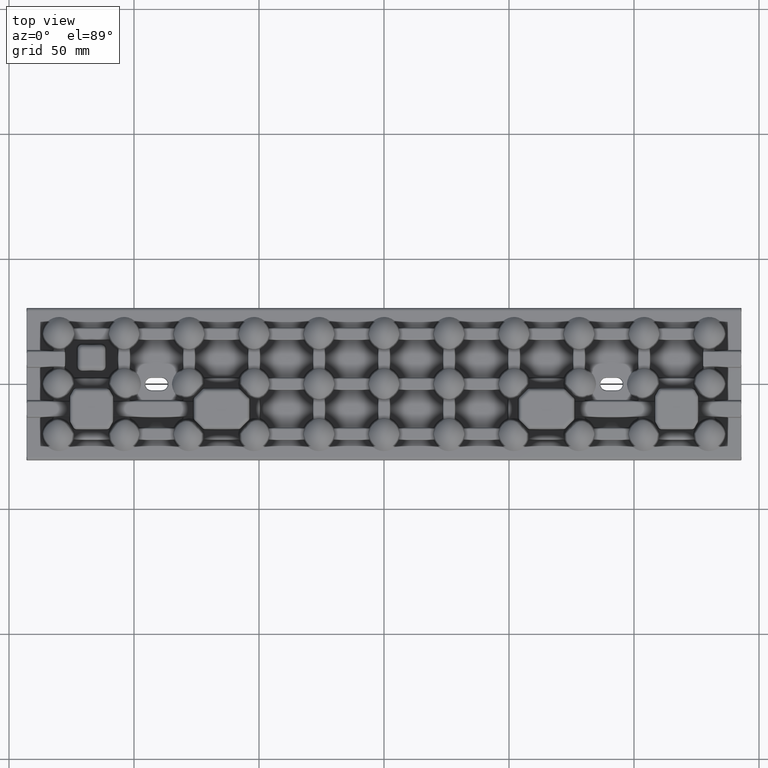
[diagram: clean part render]
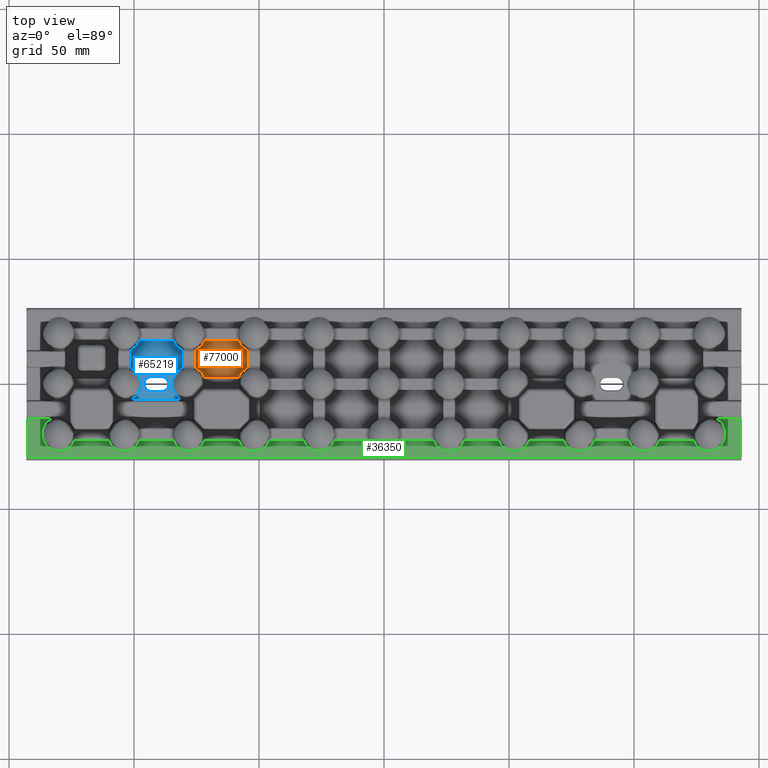
[diagram: same view with three faces highlighted in distinct colors, each labeled with its STEP entity id]
A machine part, top view with three faces highlighted in distinct colors.
Their STEP definitions:

[orange] entity #77000 — the highlighted planar face has unit normal (0, 0, 1).
#262 = CARTESIAN_POINT ( 'NONE',  ( -72.01803746629678900, 16.87445054315092800, 2.000000000000001300 ) ) ;
#1377 = ORIENTED_EDGE ( 'NONE', *, *, #36406, .F. ) ;
#3053 = ORIENTED_EDGE ( 'NONE', *, *, #38523, .F. ) ;
#5732 = VERTEX_POINT ( 'NONE', #105274 ) ;
#5815 = CARTESIAN_POINT ( 'NONE',  ( -54.74142219370168800, 14.43582890270255700, 2.000000000000000000 ) ) ;
#6078 = CARTESIAN_POINT ( 'NONE',  ( -73.52118822269253000, 5.117709245422294600, 1.999999999999999600 ) ) ;
#8817 = CARTESIAN_POINT ( 'NONE',  ( -58.15196198417105900, 17.25857780629786800, 2.000000000000000000 ) ) ;
#9883 = ORIENTED_EDGE ( 'NONE', *, *, #24581, .F. ) ;
#11880 = DIRECTION ( 'NONE',  ( -1.000000000000000000, 0.0000000000000000000, 0.0000000000000000000 ) ) ;
#13162 = LINE ( 'NONE', #78835, #96990 ) ;
#14466 = CARTESIAN_POINT ( 'NONE',  ( -74.51403999797158000, 5.866672427665573500, 1.999999999999999100 ) ) ;
#17118 = CARTESIAN_POINT ( 'NONE',  ( -56.62680653960139000, 4.964384824720431400, 2.000000000000178100 ) ) ;
#17170 = EDGE_CURVE ( 'NONE', #62025, #54807, #37137, .T. ) ;
#17197 = CARTESIAN_POINT ( 'NONE',  ( -56.47881223553075400, 14.88229091936029400, 2.000000000000000000 ) ) ;
#17365 = CARTESIAN_POINT ( 'NONE',  ( -56.47323715504074200, 5.109133294465305400, 2.000000000000032900 ) ) ;
#19462 = CARTESIAN_POINT ( 'NONE',  ( -58.15196198417105900, 17.25857780629786800, 2.000000000000000000 ) ) ;
#22423 = CARTESIAN_POINT ( 'NONE',  ( -75.25857780629816300, 6.249219459640661600, 2.000000000000000000 ) ) ;
#22886 = CARTESIAN_POINT ( 'NONE',  ( -75.25857780629816300, 6.249219459640661600, 2.000000000000000000 ) ) ;
#24581 = EDGE_CURVE ( 'NONE', #101058, #54807, #63528, .T. ) ;
#25139 = CARTESIAN_POINT ( 'NONE',  ( -74.00751281947756900, 14.49150955926188900, 1.999999999999998700 ) ) ;
#25527 = CARTESIAN_POINT ( 'NONE',  ( -57.32086506622055600, 4.188436098863071800, 1.999999999999999600 ) ) ;
#25600 = CARTESIAN_POINT ( 'NONE',  ( -55.48596012948594600, 14.13332801902840300, 2.000000000000000400 ) ) ;
#26809 = CARTESIAN_POINT ( 'NONE',  ( -57.56417109729734000, 2.741422193701762200, 2.000000000000000000 ) ) ;
#26893 = CARTESIAN_POINT ( 'NONE',  ( -54.74142219370168800, 13.75078107891191000, 2.000000000000000000 ) ) ;
#27819 = B_SPLINE_CURVE_WITH_KNOTS ( 'NONE', 3,
 ( #108597, #50100, #75319, #25139, #83707, #33577, #92156, #42013, #100582, #50472, #262, #58871 ),
 .UNSPECIFIED., .F., .F.,
 ( 4, 2, 2, 2, 2, 4 ),
 ( 0.0000000000000000000, 0.001243938167614965100, 0.001865907251422432100, 0.002487876335229898900, 0.003731814502844830000, 0.004975752670459760600 ),
 .UNSPECIFIED. ) ;
#30359 = CARTESIAN_POINT ( 'NONE',  ( -55.99248749987304300, 5.508490107013559900, 1.999999999999999600 ) ) ;
#30520 = EDGE_CURVE ( 'NONE', #101058, #107129, #47443, .T. ) ;
#32625 = EDGE_CURVE ( 'NONE', #5732, #42015, #13162, .T. ) ;
#33239 = EDGE_CURVE ( 'NONE', #62025, #37864, #88320, .T. ) ;
#33577 = CARTESIAN_POINT ( 'NONE',  ( -73.52676333331913800, 14.89086649848465200, 2.000000000000030200 ) ) ;
#33952 = CARTESIAN_POINT ( 'NONE',  ( -57.98196378828359300, 3.125549472491253100, 1.999999999999999100 ) ) ;
#34028 = CARTESIAN_POINT ( 'NONE',  ( -54.74142219370168800, 13.75078107891191000, 2.000000000000000000 ) ) ;
#36406 = EDGE_CURVE ( 'NONE', #5732, #107129, #27819, .T. ) ;
#37137 = LINE ( 'NONE', #5815, #79081 ) ;
#37864 = VERTEX_POINT ( 'NONE', #38204 ) ;
#38204 = CARTESIAN_POINT ( 'NONE',  ( -58.15196198417124400, 2.741422193701762200, 2.000000000000000000 ) ) ;
#38523 = EDGE_CURVE ( 'NONE', #94050, #42015, #101587, .T. ) ;
#38824 = EDGE_CURVE ( 'NONE', #94050, #37864, #79425, .T. ) ;
#42013 = CARTESIAN_POINT ( 'NONE',  ( -72.93773221060371300, 15.48686660906717300, 2.000000000000178100 ) ) ;
#42015 = VERTEX_POINT ( 'NONE', #22423 ) ;
#44770 = VECTOR ( 'NONE', #68204, 1000.000000000000000 ) ;
#47443 = LINE ( 'NONE', #84662, #44770 ) ;
#47830 = CARTESIAN_POINT ( 'NONE',  ( -72.18890931649937700, 3.511651064701077500, 2.000000000000000000 ) ) ;
#50100 = CARTESIAN_POINT ( 'NONE',  ( -74.87557720051926000, 13.92465441475610200, 1.999999999999999100 ) ) ;
#50472 = CARTESIAN_POINT ( 'NONE',  ( -72.21952292274782800, 16.50428683134009900, 2.000000000000000900 ) ) ;
#53658 = CARTESIAN_POINT ( 'NONE',  ( 0.0000000000000000000, 0.0000000000000000000, 2.000000000000000000 ) ) ;
#54807 = VERTEX_POINT ( 'NONE', #26893 ) ;
#55307 = CARTESIAN_POINT ( 'NONE',  ( -54.74142219370168800, 6.249218921088064400, 2.000000000000000000 ) ) ;
#56249 = CARTESIAN_POINT ( 'NONE',  ( -71.84803937555472000, 2.741422193701760900, 2.000000000000000000 ) ) ;
#57915 = ORIENTED_EDGE ( 'NONE', *, *, #32625, .T. ) ;
#58871 = CARTESIAN_POINT ( 'NONE',  ( -71.84803937555480500, 17.25857780629788600, 2.000000000000000000 ) ) ;
#58974 = CARTESIAN_POINT ( 'NONE',  ( -57.81109183207176000, 16.48834890320414500, 1.999999999999999600 ) ) ;
#62025 = VERTEX_POINT ( 'NONE', #106070 ) ;
#62039 = DIRECTION ( 'NONE',  ( 0.0000000000000000000, 0.0000000000000000000, 1.000000000000000000 ) ) ;
#63528 = B_SPLINE_CURVE_WITH_KNOTS ( 'NONE', 3,
 ( #8817, #58974, #67358, #17197, #75774, #25600, #84163, #34028 ),
 .UNSPECIFIED., .F., .F.,
 ( 4, 2, 2, 4 ),
 ( 2.501853776554200600E-017, 0.002490340932246841500, 0.003735511398370256000, 0.004980681864493670900 ),
 .UNSPECIFIED. ) ;
#64632 = CARTESIAN_POINT ( 'NONE',  ( -73.83742808807167500, 5.388149220364007300, 1.999999999999998200 ) ) ;
#65149 = EDGE_LOOP ( 'NONE', ( #82735, #84376, #9883, #82286, #1377, #57915, #3053, #74291 ) ) ;
#65421 = AXIS2_PLACEMENT_3D ( 'NONE', #53658, #62039, #11880 ) ;
#67358 = CARTESIAN_POINT ( 'NONE',  ( -57.35743144489480700, 15.79265970607009900, 1.999999999999999600 ) ) ;
#68204 = DIRECTION ( 'NONE',  ( -1.000000000000000000, 1.156482317317870500E-015, -0.0000000000000000000 ) ) ;
#71042 = CARTESIAN_POINT ( 'NONE',  ( -71.84803937555472000, 2.741422193701760900, 2.000000000000000000 ) ) ;
#72318 = CARTESIAN_POINT ( 'NONE',  ( -72.64256929262786900, 4.207340298451781800, 1.999999999999999100 ) ) ;
#73044 = CARTESIAN_POINT ( 'NONE',  ( -74.87437938515634500, 6.074801803341607400, 2.000000000000002200 ) ) ;
#74291 = ORIENTED_EDGE ( 'NONE', *, *, #38824, .T. ) ;
#75064 = FACE_OUTER_BOUND ( 'NONE', #65149, .T. ) ;
#75319 = CARTESIAN_POINT ( 'NONE',  ( -74.51549718556350400, 14.13240040561228400, 1.999999999999997800 ) ) ;
#75690 = CARTESIAN_POINT ( 'NONE',  ( -57.06226852269031000, 4.513133231979670900, 2.000000000000178100 ) ) ;
#75774 = CARTESIAN_POINT ( 'NONE',  ( -56.16257225230521800, 14.61185104281365300, 1.999999999999999600 ) ) ;
#77000 = ADVANCED_FACE ( 'NONE', ( #75064 ), #103775, .T. ) ;
#78835 = CARTESIAN_POINT ( 'NONE',  ( -75.25857780629816300, 5.564171097297434100, 2.000000000000000000 ) ) ;
#79081 = VECTOR ( 'NONE', #106090, 1000.000000000000000 ) ;
#79425 = LINE ( 'NONE', #26809, #101698 ) ;
#80494 = CARTESIAN_POINT ( 'NONE',  ( -55.48450296657454600, 5.867599132411527300, 2.000000000000000000 ) ) ;
#82286 = ORIENTED_EDGE ( 'NONE', *, *, #30520, .T. ) ;
#82735 = ORIENTED_EDGE ( 'NONE', *, *, #33239, .F. ) ;
#83707 = CARTESIAN_POINT ( 'NONE',  ( -73.84358995723964400, 14.61920051927782400, 2.000000000000030200 ) ) ;
#84085 = CARTESIAN_POINT ( 'NONE',  ( -57.78047818923730000, 3.495713135844333000, 2.000000000000000000 ) ) ;
#84163 = CARTESIAN_POINT ( 'NONE',  ( -55.12562065174524400, 13.92519872207728700, 2.000000000000001800 ) ) ;
#84376 = ORIENTED_EDGE ( 'NONE', *, *, #17170, .T. ) ;
#84662 = CARTESIAN_POINT ( 'NONE',  ( -72.43582890270266700, 17.25857780629788600, 2.000000000000000000 ) ) ;
#87210 = DIRECTION ( 'NONE',  ( -0.0000000000000000000, -1.000000000000000000, 0.0000000000000000000 ) ) ;
#88320 = B_SPLINE_CURVE_WITH_KNOTS ( 'NONE', 3,
 ( #55307, #105395, #80494, #30359, #88900, #17365, #17118, #75690, #25527, #84085, #33952, #92532 ),
 .UNSPECIFIED., .F., .F.,
 ( 4, 2, 2, 2, 2, 4 ),
 ( 7.757919228897728500E-018, 0.001243938299592826200, 0.001865907449389226100, 0.002487876599185626400, 0.003731814898778427900, 0.004975753198371229500 ),
 .UNSPECIFIED. ) ;
#88339 = CARTESIAN_POINT ( 'NONE',  ( -71.84803937555480500, 17.25857780629788600, 2.000000000000000000 ) ) ;
#88900 = CARTESIAN_POINT ( 'NONE',  ( -56.15641042051802100, 5.380799192853169500, 2.000000000000032400 ) ) ;
#92156 = CARTESIAN_POINT ( 'NONE',  ( -73.37319400958040200, 15.03561499585811800, 2.000000000000178100 ) ) ;
#92532 = CARTESIAN_POINT ( 'NONE',  ( -58.15196198417124400, 2.741422193701762200, 2.000000000000000000 ) ) ;
#93803 = DIRECTION ( 'NONE',  ( 1.000000000000000000, 8.260587980841932600E-017, -0.0000000000000000000 ) ) ;
#94050 = VERTEX_POINT ( 'NONE', #71042 ) ;
#96990 = VECTOR ( 'NONE', #87210, 1000.000000000000000 ) ;
#100582 = CARTESIAN_POINT ( 'NONE',  ( -72.67913578207353000, 15.81156376606060100, 2.000000000000001300 ) ) ;
#101058 = VERTEX_POINT ( 'NONE', #19462 ) ;
#101587 = B_SPLINE_CURVE_WITH_KNOTS ( 'NONE', 3,
 ( #56249, #47830, #72318, #6078, #64632, #14466, #73044, #22886 ),
 .UNSPECIFIED., .F., .F.,
 ( 4, 2, 2, 4 ),
 ( 8.673617379884035500E-019, 0.002490340576285430600, 0.003735510864428132000, 0.004980681152570833400 ),
 .UNSPECIFIED. ) ;
#101698 = VECTOR ( 'NONE', #93803, 1000.000000000000000 ) ;
#103775 = PLANE ( 'NONE',  #65421 ) ;
#105274 = CARTESIAN_POINT ( 'NONE',  ( -75.25857780629816300, 13.75078054035929600, 2.000000000000000000 ) ) ;
#105395 = CARTESIAN_POINT ( 'NONE',  ( -55.12442285235363900, 6.075345052481128300, 2.000000000000000900 ) ) ;
#106070 = CARTESIAN_POINT ( 'NONE',  ( -54.74142219370168800, 6.249218921088064400, 2.000000000000000000 ) ) ;
#106090 = DIRECTION ( 'NONE',  ( 0.0000000000000000000, 1.000000000000000000, -0.0000000000000000000 ) ) ;
#107129 = VERTEX_POINT ( 'NONE', #88339 ) ;
#108597 = CARTESIAN_POINT ( 'NONE',  ( -75.25857780629816300, 13.75078054035929600, 2.000000000000000000 ) ) ;

[blue] entity #65219 — the highlighted planar face has unit normal (0, 0, 1).
#195 = LINE ( 'NONE', #21434, #83998 ) ;
#839 = AXIS2_PLACEMENT_3D ( 'NONE', #91272, #41135, #99717 ) ;
#1084 = CARTESIAN_POINT ( 'NONE',  ( -82.47881223553071100, 14.88229091936026500, 1.999999999999999600 ) ) ;
#1520 = VECTOR ( 'NONE', #63234, 1000.000000000000000 ) ;
#1901 = CARTESIAN_POINT ( 'NONE',  ( -98.69781544126654200, -4.205734226251792900, 1.999999999999999600 ) ) ;
#2249 = CARTESIAN_POINT ( 'NONE',  ( -97.18891251147945800, 0.3601133827273869700, 2.000000000000000000 ) ) ;
#2485 = B_SPLINE_CURVE_WITH_KNOTS ( 'NONE', 3,
 ( #55081, #46640, #21318, #4874, #63444, #13299, #71851, #21689, #80263, #30113, #88668, #38527 ),
 .UNSPECIFIED., .F., .F.,
 ( 4, 2, 2, 2, 2, 4 ),
 ( 3.469446951953614200E-018, 0.001243938167614965500, 0.001865907251422429300, 0.002487876335229893300, 0.003731814502844817400, 0.004975752670459742400 ),
 .UNSPECIFIED. ) ;
#2635 = CARTESIAN_POINT ( 'NONE',  ( -100.6703656880280300, 5.954702162362977400, 2.000000000000068800 ) ) ;
#3180 = VERTEX_POINT ( 'NONE', #32597 ) ;
#4384 = CIRCLE ( 'NONE', #839, 3.012859658342081900 ) ;
#4659 = CARTESIAN_POINT ( 'NONE',  ( -101.2585778062981300, 5.564171097297423400, 2.000000000000000000 ) ) ;
#4874 = CARTESIAN_POINT ( 'NONE',  ( -100.0075128194775800, 14.49150955926190300, 2.000000000000000000 ) ) ;
#6442 = CARTESIAN_POINT ( 'NONE',  ( -80.74142219370168000, 6.249218921088060900, 2.000000000000000000 ) ) ;
#7321 = CARTESIAN_POINT ( 'NONE',  ( -84.73379735834888000, 0.8396482230859025900, 2.000000000000000000 ) ) ;
#7376 = EDGE_CURVE ( 'NONE', #10983, #72913, #2485, .T. ) ;
#7674 = CARTESIAN_POINT ( 'NONE',  ( -83.30396447005723800, -4.203325171595888100, 2.000000000000000900 ) ) ;
#8859 = ORIENTED_EDGE ( 'NONE', *, *, #18367, .T. ) ;
#9537 = CARTESIAN_POINT ( 'NONE',  ( -81.48596012948591700, 14.13332801902837900, 2.000000000000000000 ) ) ;
#9638 = VERTEX_POINT ( 'NONE', #59877 ) ;
#10332 = CARTESIAN_POINT ( 'NONE',  ( -98.16412325948647300, -3.389487999047471300, 1.999999999999998700 ) ) ;
#10423 = ORIENTED_EDGE ( 'NONE', *, *, #12627, .T. ) ;
#10705 = CARTESIAN_POINT ( 'NONE',  ( -97.26714255164674200, 0.8446090308411912100, 1.999999999999999600 ) ) ;
#10983 = VERTEX_POINT ( 'NONE', #94593 ) ;
#11071 = CARTESIAN_POINT ( 'NONE',  ( -101.2585778062981300, 6.249219459640647400, 2.000000000000000000 ) ) ;
#11207 = ORIENTED_EDGE ( 'NONE', *, *, #18789, .F. ) ;
#12627 = EDGE_CURVE ( 'NONE', #99710, #61923, #19052, .T. ) ;
#12709 = EDGE_CURVE ( 'NONE', #3180, #75896, #55809, .T. ) ;
#12860 = DIRECTION ( 'NONE',  ( -1.000000000000000000, 1.084202172485503300E-016, 0.0000000000000000000 ) ) ;
#13299 = CARTESIAN_POINT ( 'NONE',  ( -99.52676333331912400, 14.89086649848464800, 2.000000000000030600 ) ) ;
#15377 = CARTESIAN_POINT ( 'NONE',  ( -81.88260528240070400, 5.624932895819558400, 2.000000000000001300 ) ) ;
#15732 = CARTESIAN_POINT ( 'NONE',  ( -84.81174797683094400, 0.3550730699444641400, 1.999999999999998700 ) ) ;
#16082 = CARTESIAN_POINT ( 'NONE',  ( -82.66349026424100500, -4.934991599554027000, 2.000000000000001300 ) ) ;
#17674 = EDGE_CURVE ( 'NONE', #65066, #49378, #4384, .T. ) ;
#17918 = CARTESIAN_POINT ( 'NONE',  ( -80.74142219370166600, 13.75078107891190400, 2.000000000000000000 ) ) ;
#17977 = EDGE_CURVE ( 'NONE', #44466, #3180, #100018, .T. ) ;
#18367 = EDGE_CURVE ( 'NONE', #49378, #44466, #106506, .T. ) ;
#18728 = CARTESIAN_POINT ( 'NONE',  ( -97.74004351714118900, -2.503501558130588800, 2.000000000000000000 ) ) ;
#18789 = EDGE_CURVE ( 'NONE', #48603, #61923, #61561, .T. ) ;
#19052 = LINE ( 'NONE', #87564, #80624 ) ;
#19089 = CARTESIAN_POINT ( 'NONE',  ( -97.44852297785210700, 1.642621875471624200, 2.000000000000000000 ) ) ;
#19095 = EDGE_CURVE ( 'NONE', #48603, #9638, #40963, .T. ) ;
#19622 = CARTESIAN_POINT ( 'NONE',  ( -92.99999999999990100, 3.012859658342085000, 2.000000000000000000 ) ) ;
#19747 = CARTESIAN_POINT ( 'NONE',  ( -88.99999999999990100, -3.012859658342088100, 2.000000000000000000 ) ) ;
#21318 = CARTESIAN_POINT ( 'NONE',  ( -100.5154971855634900, 14.13240040561228200, 2.000000000000000000 ) ) ;
#21434 = CARTESIAN_POINT ( 'NONE',  ( -98.43582890270263900, 17.25857780629792200, 2.000000000000000000 ) ) ;
#21689 = CARTESIAN_POINT ( 'NONE',  ( -98.93773221060367000, 15.48686660906720800, 2.000000000000177200 ) ) ;
#23070 = DIRECTION ( 'NONE',  ( 0.0000000000000000000, 0.0000000000000000000, 1.000000000000000000 ) ) ;
#23342 = ORIENTED_EDGE ( 'NONE', *, *, #36828, .F. ) ;
#23491 = EDGE_CURVE ( 'NONE', #96686, #9638, #69590, .T. ) ;
#23763 = CARTESIAN_POINT ( 'NONE',  ( -82.84911260431287900, 4.744131223860328800, 1.999999999999999600 ) ) ;
#23825 = LINE ( 'NONE', #4659, #1520 ) ;
#24066 = CARTESIAN_POINT ( 'NONE',  ( -80.78620976479837200, -6.228681456733721000, 2.000000000000000000 ) ) ;
#24116 = CARTESIAN_POINT ( 'NONE',  ( -84.84037670908753600, -0.1351194045001004900, 2.000000000000000400 ) ) ;
#24466 = CARTESIAN_POINT ( 'NONE',  ( -81.91587082569259300, -5.571384456611259100, 2.000000000000243800 ) ) ;
#25043 = LINE ( 'NONE', #64088, #44708 ) ;
#27157 = CARTESIAN_POINT ( 'NONE',  ( -97.43097272593367100, -1.578735349903792200, 2.000000000000000000 ) ) ;
#27513 = CARTESIAN_POINT ( 'NONE',  ( -98.01718113847010700, 3.162031402949381700, 2.000000000000001300 ) ) ;
#29853 = DIRECTION ( 'NONE',  ( -1.000000000000000000, 0.0000000000000000000, -0.0000000000000000000 ) ) ;
#30113 = CARTESIAN_POINT ( 'NONE',  ( -98.21952292274775700, 16.50428683134013100, 2.000000000000000000 ) ) ;
#31539 = ORIENTED_EDGE ( 'NONE', *, *, #23491, .F. ) ;
#31800 = DIRECTION ( 'NONE',  ( -0.0000000000000000000, -0.0000000000000000000, -1.000000000000000000 ) ) ;
#32200 = CARTESIAN_POINT ( 'NONE',  ( -83.46039917099287200, 3.987759539915962200, 1.999999999999999600 ) ) ;
#32537 = CARTESIAN_POINT ( 'NONE',  ( -84.77230515615126200, -0.6225545924141564500, 1.999999999999993600 ) ) ;
#32597 = CARTESIAN_POINT ( 'NONE',  ( -92.99999999999990100, -3.012859658342087700, 2.000000000000000000 ) ) ;
#32886 = CARTESIAN_POINT ( 'NONE',  ( -81.08463643033643100, -6.090467834086472200, 2.000000000000000400 ) ) ;
#33075 = ORIENTED_EDGE ( 'NONE', *, *, #17977, .T. ) ;
#34405 = CARTESIAN_POINT ( 'NONE',  ( -83.81109183207185300, 16.48834890320410900, 2.000000000000000400 ) ) ;
#34605 = ORIENTED_EDGE ( 'NONE', *, *, #7376, .F. ) ;
#35207 = CARTESIAN_POINT ( 'NONE',  ( -100.0755106634795600, -5.594740432422344000, 2.000000000000000900 ) ) ;
#35569 = CARTESIAN_POINT ( 'NONE',  ( -97.25514244252679000, -0.7798094211570924000, 2.000000000000000400 ) ) ;
#35934 = CARTESIAN_POINT ( 'NONE',  ( -98.73317151301506600, 4.252048536653982000, 1.999999999999999600 ) ) ;
#36828 = EDGE_CURVE ( 'NONE', #99710, #54988, #92904, .T. ) ;
#37756 = CARTESIAN_POINT ( 'NONE',  ( -101.2137890808818000, -6.228681456733721000, 2.000000000000000000 ) ) ;
#38064 = FACE_OUTER_BOUND ( 'NONE', #82579, .T. ) ;
#38075 = CARTESIAN_POINT ( 'NONE',  ( -88.99999999999990100, 3.012859658342085000, 2.000000000000000000 ) ) ;
#38527 = CARTESIAN_POINT ( 'NONE',  ( -97.84803937555480500, 17.25857780629792200, 2.000000000000000000 ) ) ;
#40253 = CARTESIAN_POINT ( 'NONE',  ( -81.33950495409838800, 5.977702512569840600, 2.000000000000000000 ) ) ;
#40605 = CARTESIAN_POINT ( 'NONE',  ( -83.96499781918102200, 3.148729318508444400, 2.000000000000001800 ) ) ;
#40962 = CARTESIAN_POINT ( 'NONE',  ( -84.64800539947326300, -1.265633907018397700, 2.000000000000000400 ) ) ;
#40963 = LINE ( 'NONE', #96503, #82843 ) ;
#41135 = DIRECTION ( 'NONE',  ( -0.0000000000000000000, -0.0000000000000000000, -1.000000000000000000 ) ) ;
#42904 = DIRECTION ( 'NONE',  ( -0.0000000000000000000, -0.0000000000000000000, -1.000000000000000000 ) ) ;
#44011 = CARTESIAN_POINT ( 'NONE',  ( -97.18054402411486600, -0.2939317916749830100, 2.000000000000000000 ) ) ;
#44374 = CARTESIAN_POINT ( 'NONE',  ( -99.38037904905651500, 4.977646524967285700, 1.999999999999999600 ) ) ;
#44466 = VERTEX_POINT ( 'NONE', #19747 ) ;
#44708 = VECTOR ( 'NONE', #47286, 1000.000000000000000 ) ;
#46640 = CARTESIAN_POINT ( 'NONE',  ( -100.8755772005192300, 13.92465441475612100, 2.000000000000000000 ) ) ;
#47286 = DIRECTION ( 'NONE',  ( 1.000000000000000000, -1.084202172485503300E-016, 0.0000000000000000000 ) ) ;
#47663 = CARTESIAN_POINT ( 'NONE',  ( 0.0000000000000000000, 0.0000000000000000000, 2.000000000000000000 ) ) ;
#48603 = VERTEX_POINT ( 'NONE', #6442 ) ;
#49078 = CARTESIAN_POINT ( 'NONE',  ( -84.35502219805700000, 2.254367810717584400, 2.000000000000000000 ) ) ;
#49378 = VERTEX_POINT ( 'NONE', #87034 ) ;
#49425 = CARTESIAN_POINT ( 'NONE',  ( -84.27691418624324600, -2.511312787765320700, 2.000000000000032000 ) ) ;
#51294 = CARTESIAN_POINT ( 'NONE',  ( -83.35743144489477200, 15.79265970607004400, 1.999999999999999600 ) ) ;
#52074 = CARTESIAN_POINT ( 'NONE',  ( -99.11443689724596600, -4.704835749757826600, 2.000000000000000400 ) ) ;
#52450 = CARTESIAN_POINT ( 'NONE',  ( -97.16590432443284400, 0.1974789427237312600, 2.000000000000000400 ) ) ;
#52823 = CARTESIAN_POINT ( 'NONE',  ( -100.1223196864810600, 5.599111541023289900, 2.000000000000069700 ) ) ;
#54646 = CARTESIAN_POINT ( 'NONE',  ( -92.99999999999990100, -3.012859658342087700, 2.000000000000000000 ) ) ;
#54988 = VERTEX_POINT ( 'NONE', #81018 ) ;
#55081 = CARTESIAN_POINT ( 'NONE',  ( -101.2585778062981300, 13.75078054035931700, 2.000000000000000000 ) ) ;
#55809 = CIRCLE ( 'NONE', #69330, 3.012859658342081900 ) ;
#56976 = CARTESIAN_POINT ( 'NONE',  ( -97.84803937555480500, 17.25857780629792200, 2.000000000000000000 ) ) ;
#57479 = CARTESIAN_POINT ( 'NONE',  ( -84.63491324897970000, 1.320623412311763900, 2.000000000000000400 ) ) ;
#57839 = CARTESIAN_POINT ( 'NONE',  ( -83.49526066443668500, -3.937586493121963300, 2.000000000000022200 ) ) ;
#57945 = ORIENTED_EDGE ( 'NONE', *, *, #79706, .T. ) ;
#59696 = CARTESIAN_POINT ( 'NONE',  ( -82.16257225230519600, 14.61185104281363000, 2.000000000000000000 ) ) ;
#59775 = CARTESIAN_POINT ( 'NONE',  ( -101.2137890808818000, -6.228681456733721000, 2.000000000000000000 ) ) ;
#59877 = CARTESIAN_POINT ( 'NONE',  ( -80.74142219370166600, 13.75078107891190400, 2.000000000000000000 ) ) ;
#60351 = FACE_BOUND ( 'NONE', #88891, .T. ) ;
#60490 = CARTESIAN_POINT ( 'NONE',  ( -98.50814580399813300, -3.942373460402113700, 1.999999999999999100 ) ) ;
#60857 = CARTESIAN_POINT ( 'NONE',  ( -97.23804806851761400, 0.6837550330146570100, 1.999999999999999600 ) ) ;
#61215 = CARTESIAN_POINT ( 'NONE',  ( -100.9594394253311100, 6.113417195898123600, 1.999999999999999600 ) ) ;
#61561 = B_SPLINE_CURVE_WITH_KNOTS ( 'NONE', 3,
 ( #98842, #40253, #15377, #73931, #23763, #82309, #32200, #90768, #40605, #99198, #49078, #107581, #57479, #7321, #65872, #15732, #74289, #24116, #82664, #32537, #91108, #40962, #99556, #49425, #107927, #57839, #7674, #66219, #16082, #74627, #24466, #83023, #32886, #91448 ),
 .UNSPECIFIED., .F., .F.,
 ( 4, 2, 2, 2, 2, 2, 2, 2, 2, 2, 2, 2, 2, 2, 2, 2, 4 ),
 ( 1.844036349440735300E-017, 0.001942498100661942900, 0.002913747150992904300, 0.003884996201323865900, 0.004856245251654826700, 0.005827494301985787800, 0.006798743352316749000, 0.007284367877482225700, 0.007769992402647702400, 0.008255616927813179100, 0.008741241452978654900, 0.009712490503309606500, 0.01165498860397149800, 0.01262623765430244600, 0.01359748670463339000, 0.01456873575496433900, 0.01553998480529528300 ),
 .UNSPECIFIED. ) ;
#61923 = VERTEX_POINT ( 'NONE', #24066 ) ;
#63234 = DIRECTION ( 'NONE',  ( -0.0000000000000000000, -1.000000000000000000, 0.0000000000000000000 ) ) ;
#63444 = CARTESIAN_POINT ( 'NONE',  ( -99.84358995723964400, 14.61920051927784000, 2.000000000000031100 ) ) ;
#64088 = CARTESIAN_POINT ( 'NONE',  ( 3.266548986968409300E-016, 3.012859658342075300, 2.000000000000000000 ) ) ;
#64654 = ORIENTED_EDGE ( 'NONE', *, *, #12709, .T. ) ;
#65066 = VERTEX_POINT ( 'NONE', #38075 ) ;
#65219 = ADVANCED_FACE ( 'NONE', ( #38064, #60351 ), #81266, .T. ) ;
#65872 = CARTESIAN_POINT ( 'NONE',  ( -84.76283016833777100, 0.6786475596724034200, 1.999999999999998700 ) ) ;
#66219 = CARTESIAN_POINT ( 'NONE',  ( -82.88853604451685400, -4.701549327662381600, 2.000000000000002200 ) ) ;
#67765 = CARTESIAN_POINT ( 'NONE',  ( -84.15196198417108100, 17.25857780629792200, 2.000000000000000000 ) ) ;
#68079 = CARTESIAN_POINT ( 'NONE',  ( -81.12562065174518000, 13.92519872207727100, 1.999999999999998700 ) ) ;
#68889 = CARTESIAN_POINT ( 'NONE',  ( -98.00917479492396500, -3.098066046033560300, 2.000000000000000400 ) ) ;
#69250 = CARTESIAN_POINT ( 'NONE',  ( -97.36608778052712400, 1.324680266042699700, 2.000000000000000400 ) ) ;
#69330 = AXIS2_PLACEMENT_3D ( 'NONE', #93041, #42904, #101482 ) ;
#69590 = B_SPLINE_CURVE_WITH_KNOTS ( 'NONE', 3,
 ( #92979, #34405, #51294, #1084, #59696, #9537, #68079, #17918 ),
 .UNSPECIFIED., .F., .F.,
 ( 4, 2, 2, 4 ),
 ( 1.040834085586084300E-017, 0.002490340932246935200, 0.003735511398370383500, 0.004980681864493831400 ),
 .UNSPECIFIED. ) ;
#69804 = ORIENTED_EDGE ( 'NONE', *, *, #17674, .T. ) ;
#71851 = CARTESIAN_POINT ( 'NONE',  ( -99.37319400958035900, 15.03561499585813800, 2.000000000000177200 ) ) ;
#72913 = VERTEX_POINT ( 'NONE', #56976 ) ;
#73931 = CARTESIAN_POINT ( 'NONE',  ( -82.61833869843782500, 4.979154571043610900, 2.000000000000000900 ) ) ;
#74289 = CARTESIAN_POINT ( 'NONE',  ( -84.83463537906226300, 0.1926938182107630300, 2.000000000000000000 ) ) ;
#74403 = ORIENTED_EDGE ( 'NONE', *, *, #19095, .T. ) ;
#74627 = CARTESIAN_POINT ( 'NONE',  ( -82.17772549300137500, -5.369623302055105200, 2.000000000000000400 ) ) ;
#75896 = VERTEX_POINT ( 'NONE', #19622 ) ;
#77320 = CARTESIAN_POINT ( 'NONE',  ( -97.62518482353445400, -2.199363466320286800, 2.000000000000000000 ) ) ;
#77683 = CARTESIAN_POINT ( 'NONE',  ( -97.74833571637059000, 2.574612175358667700, 2.000000000000000000 ) ) ;
#79639 = DIRECTION ( 'NONE',  ( 9.251858538542944200E-016, 1.000000000000000000, -0.0000000000000000000 ) ) ;
#79706 = EDGE_CURVE ( 'NONE', #75896, #65066, #25043, .T. ) ;
#80263 = CARTESIAN_POINT ( 'NONE',  ( -98.67913578207345900, 15.81156376606063300, 2.000000000000000000 ) ) ;
#80331 = VECTOR ( 'NONE', #12860, 1000.000000000000000 ) ;
#80624 = VECTOR ( 'NONE', #82105, 1000.000000000000000 ) ;
#80967 = AXIS2_PLACEMENT_3D ( 'NONE', #47663, #23070, #81629 ) ;
#81018 = CARTESIAN_POINT ( 'NONE',  ( -101.2585778062981300, 6.249219459640647400, 2.000000000000000000 ) ) ;
#81266 = PLANE ( 'NONE',  #80967 ) ;
#81629 = DIRECTION ( 'NONE',  ( -1.000000000000000000, 0.0000000000000000000, 0.0000000000000000000 ) ) ;
#81918 = CARTESIAN_POINT ( 'NONE',  ( -88.99999999999990100, -1.836970198721029200E-015, 2.000000000000000000 ) ) ;
#82105 = DIRECTION ( 'NONE',  ( 1.000000000000000000, 0.0000000000000000000, -0.0000000000000000000 ) ) ;
#82309 = CARTESIAN_POINT ( 'NONE',  ( -83.26900130010361100, 4.249187535298634800, 2.000000000000000000 ) ) ;
#82579 = EDGE_LOOP ( 'NONE', ( #11207, #74403, #31539, #101094, #34605, #97890, #23342, #10423 ) ) ;
#82664 = CARTESIAN_POINT ( 'NONE',  ( -84.81893400321426700, -0.2982272362903893300, 1.999999999999994000 ) ) ;
#82843 = VECTOR ( 'NONE', #79639, 1000.000000000000000 ) ;
#83023 = CARTESIAN_POINT ( 'NONE',  ( -81.37004916400380200, -5.931031712519849300, 2.000000000000244200 ) ) ;
#83998 = VECTOR ( 'NONE', #29853, 1000.000000000000000 ) ;
#85693 = CARTESIAN_POINT ( 'NONE',  ( -97.35116772303874200, -1.262161570623308700, 2.000000000000000900 ) ) ;
#86057 = CARTESIAN_POINT ( 'NONE',  ( -98.53796233746685100, 3.985387656030542100, 2.000000000000002200 ) ) ;
#87034 = CARTESIAN_POINT ( 'NONE',  ( -85.98714034165782000, -1.836970198721029200E-015, 2.000000000000000000 ) ) ;
#87564 = CARTESIAN_POINT ( 'NONE',  ( 0.0000000000000000000, -6.228681456733721000, 2.000000000000000000 ) ) ;
#88668 = CARTESIAN_POINT ( 'NONE',  ( -98.01803746629674700, 16.87445054315096000, 2.000000000000001300 ) ) ;
#88891 = EDGE_LOOP ( 'NONE', ( #57945, #69804, #8859, #33075, #64654 ) ) ;
#90364 = DIRECTION ( 'NONE',  ( 1.000000000000000000, 0.0000000000000000000, 0.0000000000000000000 ) ) ;
#90768 = CARTESIAN_POINT ( 'NONE',  ( -83.80809464512671500, 3.438490735611859700, 2.000000000000000400 ) ) ;
#91108 = CARTESIAN_POINT ( 'NONE',  ( -84.74411287918837800, -0.7838927560070267900, 2.000000000000000000 ) ) ;
#91272 = CARTESIAN_POINT ( 'NONE',  ( -88.99999999999990100, -1.836970198721029200E-015, 2.000000000000000000 ) ) ;
#91448 = CARTESIAN_POINT ( 'NONE',  ( -80.78620976479837200, -6.228681456733721000, 2.000000000000000000 ) ) ;
#92904 = B_SPLINE_CURVE_WITH_KNOTS ( 'NONE', 3,
 ( #59775, #93786, #35207, #102219, #52074, #1901, #60490, #10332, #68889, #18728, #77320, #27157, #85693, #35569, #94142, #44011, #102578, #52450, #2249, #60857, #10705, #69250, #19089, #77683, #27513, #86057, #35934, #94506, #44374, #102957, #52823, #2635, #61215, #11071 ),
 .UNSPECIFIED., .F., .F.,
 ( 4, 2, 2, 2, 2, 2, 2, 2, 2, 2, 2, 2, 2, 2, 2, 2, 4 ),
 ( 0.0000000000000000000, 0.001945666831502167000, 0.002918500247253250100, 0.003891333663004334000, 0.004864167078755418000, 0.005837000494506500200, 0.006809833910257584100, 0.007296250618133126100, 0.007782667326008668000, 0.008269084033884209100, 0.008755500741759752000, 0.009728334157510827200, 0.01167400098901297600, 0.01264683440476405300, 0.01361966782051513000, 0.01459250123626620700, 0.01556533465201728400 ),
 .UNSPECIFIED. ) ;
#92979 = CARTESIAN_POINT ( 'NONE',  ( -84.15196198417108100, 17.25857780629792200, 2.000000000000000000 ) ) ;
#93041 = CARTESIAN_POINT ( 'NONE',  ( -92.99999999999990100, -1.592040838891558300E-015, 2.000000000000000000 ) ) ;
#93786 = CARTESIAN_POINT ( 'NONE',  ( -100.6168061993270900, -5.952194011096882100, 2.000000000000000000 ) ) ;
#94142 = CARTESIAN_POINT ( 'NONE',  ( -97.22700389968180400, -0.6183886379386324100, 1.999999999999999600 ) ) ;
#94506 = CARTESIAN_POINT ( 'NONE',  ( -99.15399323323978800, 4.747487240278950100, 1.999999999999999600 ) ) ;
#94593 = CARTESIAN_POINT ( 'NONE',  ( -101.2585778062981300, 13.75078054035931700, 2.000000000000000000 ) ) ;
#96503 = CARTESIAN_POINT ( 'NONE',  ( -80.74142219370166600, 14.43582890270257300, 2.000000000000000000 ) ) ;
#96686 = VERTEX_POINT ( 'NONE', #67765 ) ;
#97890 = ORIENTED_EDGE ( 'NONE', *, *, #106581, .T. ) ;
#98842 = CARTESIAN_POINT ( 'NONE',  ( -80.74142219370168000, 6.249218921088060900, 2.000000000000000000 ) ) ;
#99198 = CARTESIAN_POINT ( 'NONE',  ( -84.23810509352314600, 2.557141670485766600, 2.000000000000001300 ) ) ;
#99556 = CARTESIAN_POINT ( 'NONE',  ( -84.56783286170575300, -1.583007882295347700, 2.000000000000032400 ) ) ;
#99710 = VERTEX_POINT ( 'NONE', #37756 ) ;
#99717 = DIRECTION ( 'NONE',  ( 1.000000000000000000, 0.0000000000000000000, 0.0000000000000000000 ) ) ;
#99816 = AXIS2_PLACEMENT_3D ( 'NONE', #81918, #31800, #90364 ) ;
#100018 = LINE ( 'NONE', #54646, #80331 ) ;
#101094 = ORIENTED_EDGE ( 'NONE', *, *, #108655, .T. ) ;
#101482 = DIRECTION ( 'NONE',  ( 1.000000000000000000, 0.0000000000000000000, 0.0000000000000000000 ) ) ;
#102219 = CARTESIAN_POINT ( 'NONE',  ( -99.34366348367370800, -4.942105000043059500, 2.000000000000001300 ) ) ;
#102578 = CARTESIAN_POINT ( 'NONE',  ( -97.15925990063168200, -0.1305413129357519700, 2.000000000000000400 ) ) ;
#102957 = CARTESIAN_POINT ( 'NONE',  ( -99.86458662669900800, 5.403409923597324700, 1.999999999999999100 ) ) ;
#106506 = CIRCLE ( 'NONE', #99816, 3.012859658342081900 ) ;
#106581 = EDGE_CURVE ( 'NONE', #10983, #54988, #23825, .T. ) ;
#107581 = CARTESIAN_POINT ( 'NONE',  ( -84.55321448568545900, 1.636150752317556200, 2.000000000000000400 ) ) ;
#107927 = CARTESIAN_POINT ( 'NONE',  ( -84.01387044329591400, -3.102034713579353600, 2.000000000000022600 ) ) ;
#108655 = EDGE_CURVE ( 'NONE', #96686, #72913, #195, .T. ) ;

[green] entity #36350 — the highlighted planar face has unit normal (-0, 0, 1).
#34 = CARTESIAN_POINT ( 'NONE',  ( -58.15196198417127200, -22.74142219370179800, 2.000000000000000000 ) ) ;
#91 = LINE ( 'NONE', #32144, #61669 ) ;
#259 = CARTESIAN_POINT ( 'NONE',  ( 99.27832742203895600, -24.91052258080300800, 2.000000000000081700 ) ) ;
#398 = CARTESIAN_POINT ( 'NONE',  ( -57.87141007895239400, -23.32540904285252000, 1.999999999999999600 ) ) ;
#468 = ORIENTED_EDGE ( 'NONE', *, *, #34975, .T. ) ;
#617 = CARTESIAN_POINT ( 'NONE',  ( 105.6117191119791000, -26.64982517467883100, 2.000000000000000000 ) ) ;
#747 = CARTESIAN_POINT ( 'NONE',  ( -51.68442574046369500, -26.83853054857112900, 2.000000000000220300 ) ) ;
#953 = CARTESIAN_POINT ( 'NONE',  ( 110.1519606244452400, -22.74142219370180100, 2.000000000000000000 ) ) ;
#1087 = CARTESIAN_POINT ( 'NONE',  ( -46.47238099425214100, -23.88979973393437500, 2.000000000000001300 ) ) ;
#1259 = CARTESIAN_POINT ( 'NONE',  ( 72.46659313662559000, -23.88115131397578500, 1.999999999999999600 ) ) ;
#1494 = CARTESIAN_POINT ( 'NONE',  ( 0.0000000000000000000, -22.74142219370179800, 2.000000000000000000 ) ) ;
#1519 = VERTEX_POINT ( 'NONE', #22945 ) ;
#1551 = VERTEX_POINT ( 'NONE', #98739 ) ;
#1616 = CARTESIAN_POINT ( 'NONE',  ( 78.64297858505574400, -26.81527373077707200, 2.000000000000000000 ) ) ;
#1984 = CARTESIAN_POINT ( 'NONE',  ( 83.86694134417742000, -23.33359520799129400, 1.999999999999999100 ) ) ;
#2077 = VERTEX_POINT ( 'NONE', #15856 ) ;
#2451 = CARTESIAN_POINT ( 'NONE',  ( 21.27832742203894200, -24.91052258080301100, 2.000000000000080800 ) ) ;
#2725 = ORIENTED_EDGE ( 'NONE', *, *, #30910, .F. ) ;
#2830 = CARTESIAN_POINT ( 'NONE',  ( 27.61171911197910200, -26.64982517467879900, 2.000000000000000400 ) ) ;
#2884 = CARTESIAN_POINT ( 'NONE',  ( -30.72167257796110500, -24.91052258080297900, 2.000000000000081700 ) ) ;
#3184 = CARTESIAN_POINT ( 'NONE',  ( 32.15196062444528000, -22.74142219370180100, 2.000000000000000000 ) ) ;
#3195 = CARTESIAN_POINT ( 'NONE',  ( 123.8480380158287500, -22.74142219370180100, 2.000000000000000000 ) ) ;
#3240 = CARTESIAN_POINT ( 'NONE',  ( -24.38828088802095100, -26.64982517467882100, 2.000000000000000000 ) ) ;
#3393 = CARTESIAN_POINT ( 'NONE',  ( 19.84803801582875200, -22.74142219370180100, 2.000000000000000000 ) ) ;
#3555 = CARTESIAN_POINT ( 'NONE',  ( 130.6442613354667800, -26.81266640451254100, 2.000000000000025300 ) ) ;
#3599 = CARTESIAN_POINT ( 'NONE',  ( -19.84803937555474500, -22.74142219370179800, 2.000000000000000000 ) ) ;
#3728 = CARTESIAN_POINT ( 'NONE',  ( -84.15196198417125100, -22.74142219370179800, 2.000000000000000000 ) ) ;
#3896 = VECTOR ( 'NONE', #81442, 1000.000000000000000 ) ;
#3919 = CARTESIAN_POINT ( 'NONE',  ( 136.0146014039180800, -23.04607313191785400, 2.000000000000000000 ) ) ;
#4119 = DIRECTION ( 'NONE',  ( -1.000000000000000000, 0.0000000000000000000, -0.0000000000000000000 ) ) ;
#4211 = LINE ( 'NONE', #55076, #71016 ) ;
#4267 = CARTESIAN_POINT ( 'NONE',  ( 136.5331072052587700, -18.25632223953211100, 2.000000000000000000 ) ) ;
#4709 = ORIENTED_EDGE ( 'NONE', *, *, #58695, .T. ) ;
#4867 = DIRECTION ( 'NONE',  ( -1.000000000000000000, 0.0000000000000000000, -0.0000000000000000000 ) ) ;
#5745 = LINE ( 'NONE', #89649, #92166 ) ;
#5874 = CARTESIAN_POINT ( 'NONE',  ( -135.9064471511028100, -16.74366223651206600, 2.000000000000001800 ) ) ;
#6011 = CARTESIAN_POINT ( 'NONE',  ( -107.4310182390529200, -25.89457568170647100, 2.000000000000432500 ) ) ;
#6245 = CARTESIAN_POINT ( 'NONE',  ( -136.5096053860156600, -21.78101220251105400, 2.000000000000000000 ) ) ;
#6247 = CARTESIAN_POINT ( 'NONE',  ( -83.34281850754136700, -24.15163854873682300, 2.000000000000080400 ) ) ;
#6371 = CARTESIAN_POINT ( 'NONE',  ( -101.4624073800539600, -26.34651950117078200, 2.000000000000000900 ) ) ;
#6608 = CARTESIAN_POINT ( 'NONE',  ( -130.1126755279154800, -26.84265079576871600, 2.000000000000000000 ) ) ;
#6611 = CARTESIAN_POINT ( 'NONE',  ( -76.70637847923026700, -26.72046232365772100, 2.000000000000002200 ) ) ;
#6951 = CARTESIAN_POINT ( 'NONE',  ( -5.871410078952400200, -23.32540904285252000, 1.999999999999999600 ) ) ;
#6962 = CARTESIAN_POINT ( 'NONE',  ( -124.3592848806865200, -23.71252275133830200, 2.000000000000000900 ) ) ;
#6964 = CARTESIAN_POINT ( 'NONE',  ( -71.98075855669712600, -23.04131412541006400, 2.000000000000000000 ) ) ;
#7033 = VERTEX_POINT ( 'NONE', #89919 ) ;
#7265 = DIRECTION ( 'NONE',  ( -0.0000000000000000000, 1.000000000000000000, -0.0000000000000000000 ) ) ;
#7317 = CARTESIAN_POINT ( 'NONE',  ( 0.3155742595363076900, -26.83853054857110400, 2.000000000000216700 ) ) ;
#7593 = CARTESIAN_POINT ( 'NONE',  ( 49.74716802323828100, -26.45610083914868900, 2.000000000000626200 ) ) ;
#7670 = CARTESIAN_POINT ( 'NONE',  ( 5.527619005747867600, -23.88979973393438200, 2.000000000000000900 ) ) ;
#7950 = CARTESIAN_POINT ( 'NONE',  ( 55.95797012465348500, -25.54024425277151200, 2.000000000000000400 ) ) ;
#8716 = CARTESIAN_POINT ( 'NONE',  ( 100.5689817609469300, -25.89457568170642400, 2.000000000000433400 ) ) ;
#8846 = CARTESIAN_POINT ( 'NONE',  ( -57.34281850754143800, -24.15163854873678400, 2.000000000000081700 ) ) ;
#9056 = CARTESIAN_POINT ( 'NONE',  ( 106.5375926199460400, -26.34651950117078600, 2.000000000000001300 ) ) ;
#9188 = CARTESIAN_POINT ( 'NONE',  ( -50.70637847923027400, -26.72046232365772800, 2.000000000000000400 ) ) ;
#9541 = CARTESIAN_POINT ( 'NONE',  ( -45.98075855669703300, -23.04131412541006400, 1.999999999999997800 ) ) ;
#9696 = CARTESIAN_POINT ( 'NONE',  ( 73.27832742203885600, -24.91052258080296500, 2.000000000000081300 ) ) ;
#9927 = ORIENTED_EDGE ( 'NONE', *, *, #36288, .T. ) ;
#9960 = VERTEX_POINT ( 'NONE', #77263 ) ;
#10050 = CARTESIAN_POINT ( 'NONE',  ( 79.61171911197908500, -26.64982517467885600, 2.000000000000000400 ) ) ;
#10414 = CARTESIAN_POINT ( 'NONE',  ( 84.15196062444523800, -22.74142219370180100, 2.000000000000000000 ) ) ;
#10483 = B_SPLINE_CURVE_WITH_KNOTS ( 'NONE', 3,
 ( #30886, #81002, #39272, #97887, #47771, #106270, #56184, #6011, #64572, #14408, #72988, #22818, #81378, #31256, #89813, #39654, #98253, #48127, #106641, #56548, #6371, #64929, #14772, #73343, #23182, #81740, #31620, #90169, #40016, #98620, #48504, #106996 ),
 .UNSPECIFIED., .F., .F.,
 ( 4, 2, 2, 2, 2, 2, 2, 2, 2, 2, 2, 2, 2, 2, 2, 4 ),
 ( 0.01057141221759957800, 0.01154738583882094700, 0.01252335946004231500, 0.01447530670248506000, 0.01545128032370644800, 0.01642725394492783300, 0.01740322756614922200, 0.01837920118737061000, 0.01935517480859199800, 0.02033114842981338700, 0.02130712205103477100, 0.02228309567225616000, 0.02325906929347754800, 0.02423504291469893600, 0.02521101653592032500, 0.02618699015714171000 ),
 .UNSPECIFIED. ) ;
#10629 = CARTESIAN_POINT ( 'NONE',  ( 71.84803801582873500, -22.74142219370180100, 2.000000000000000000 ) ) ;
#10895 = CARTESIAN_POINT ( 'NONE',  ( 22.56898176094705400, -25.89457568170646300, 2.000000000000432100 ) ) ;
#10913 = ORIENTED_EDGE ( 'NONE', *, *, #28591, .T. ) ;
#11252 = CARTESIAN_POINT ( 'NONE',  ( 28.53759261994607100, -26.34651950117077800, 2.000000000000001800 ) ) ;
#11311 = CARTESIAN_POINT ( 'NONE',  ( -29.43101823905298200, -25.89457568170646300, 2.000000000000433400 ) ) ;
#11614 = CARTESIAN_POINT ( 'NONE',  ( 124.3390417407279800, -23.71134660440845500, 1.999999999999999100 ) ) ;
#11654 = CARTESIAN_POINT ( 'NONE',  ( -23.46240738005401000, -26.34651950117079600, 2.000000000000001300 ) ) ;
#11989 = CARTESIAN_POINT ( 'NONE',  ( 131.4604033568928100, -26.68302520701353600, 2.000000000000048800 ) ) ;
#12343 = CARTESIAN_POINT ( 'NONE',  ( 136.3404786122353600, -22.28874227443970900, 2.000000000000000400 ) ) ;
#12393 = VERTEX_POINT ( 'NONE', #59502 ) ;
#12643 = ORIENTED_EDGE ( 'NONE', *, *, #22349, .T. ) ;
#12700 = CARTESIAN_POINT ( 'NONE',  ( 136.0336334509094100, -16.99291729988771100, 2.000000000000000000 ) ) ;
#12960 = VECTOR ( 'NONE', #46266, 1000.000000000000000 ) ;
#13687 = EDGE_CURVE ( 'NONE', #44396, #12393, #59713, .T. ) ;
#14278 = CARTESIAN_POINT ( 'NONE',  ( -136.3675886171306800, -17.74255977033051200, 2.000000000000000900 ) ) ;
#14408 = CARTESIAN_POINT ( 'NONE',  ( -106.5556251527589900, -26.33891068603099200, 2.000000000000347300 ) ) ;
#14579 = B_SPLINE_CURVE_WITH_KNOTS ( 'NONE', 3,
 ( #92154, #83705, #58520, #100578, #50468, #259, #58868, #8716, #67254, #17092, #75664, #25495, #84059, #33923, #92510, #42370, #100926, #50810, #617, #59214, #9056, #67607, #17446, #76013, #25837, #84408, #34277, #92842, #42706, #101293, #51172, #953 ),
 .UNSPECIFIED., .F., .F.,
 ( 4, 2, 2, 2, 2, 2, 2, 2, 2, 2, 2, 2, 2, 2, 2, 4 ),
 ( 0.01057141221759921700, 0.01154738583882054500, 0.01252335946004187000, 0.01447530670248452400, 0.01545128032370583100, 0.01642725394492713900, 0.01740322756614844400, 0.01837920118736975300, 0.01935517480859105800, 0.02033114842981236700, 0.02130712205103367200, 0.02228309567225497700, 0.02325906929347628200, 0.02423504291469758700, 0.02521101653591889500, 0.02618699015714020000 ),
 .UNSPECIFIED. ) ;
#14593 = CARTESIAN_POINT ( 'NONE',  ( 6.151960624445307800, -22.74142219370180100, 2.000000000000000000 ) ) ;
#14634 = CARTESIAN_POINT ( 'NONE',  ( -136.0262464567923100, -23.05667220909249300, 2.000000000000000000 ) ) ;
#14637 = CARTESIAN_POINT ( 'NONE',  ( -82.24389943321816100, -25.34645134108164300, 2.000000000000433000 ) ) ;
#14772 = CARTESIAN_POINT ( 'NONE',  ( -100.5826808851633600, -25.90276817773653000, 2.000000000000000000 ) ) ;
#14916 = CARTESIAN_POINT ( 'NONE',  ( 45.97923669988500700, -23.03787824268595200, 2.000000000000023100 ) ) ;
#15006 = CARTESIAN_POINT ( 'NONE',  ( -129.2932390769732400, -26.80635589028518600, 2.000000000000022600 ) ) ;
#15011 = CARTESIAN_POINT ( 'NONE',  ( -75.76628737778358400, -26.46287936428611000, 2.000000000000000900 ) ) ;
#15373 = CARTESIAN_POINT ( 'NONE',  ( -5.342818507541414500, -24.15163854873677000, 2.000000000000081300 ) ) ;
#15383 = CARTESIAN_POINT ( 'NONE',  ( -123.9593229893823100, -22.99287837080438700, 2.000000000000001300 ) ) ;
#15653 = CARTESIAN_POINT ( 'NONE',  ( 46.12858992104759200, -23.32540904285252700, 2.000000000000000000 ) ) ;
#15729 = CARTESIAN_POINT ( 'NONE',  ( 1.293621520769746300, -26.72046232365772100, 2.000000000000000000 ) ) ;
#15856 = CARTESIAN_POINT ( 'NONE',  ( -71.84803937555474800, -22.74142219370179800, 2.000000000000000000 ) ) ;
#16001 = CARTESIAN_POINT ( 'NONE',  ( 50.69340544561397600, -26.71782325338758600, 2.000000000000006700 ) ) ;
#16076 = CARTESIAN_POINT ( 'NONE',  ( 6.019241443302981900, -23.04131412541008200, 2.000000000000000900 ) ) ;
#16112 = EDGE_CURVE ( 'NONE', #31677, #9960, #28072, .T. ) ;
#16343 = CARTESIAN_POINT ( 'NONE',  ( 56.69766042858969300, -24.90106969061318800, 2.000000000000000000 ) ) ;
#16398 = EDGE_CURVE ( 'NONE', #31677, #78390, #21492, .T. ) ;
#17092 = CARTESIAN_POINT ( 'NONE',  ( 101.4443748472409800, -26.33891068603098200, 2.000000000000346800 ) ) ;
#17225 = CARTESIAN_POINT ( 'NONE',  ( -56.24389943321818200, -25.34645134108161800, 2.000000000000433000 ) ) ;
#17446 = CARTESIAN_POINT ( 'NONE',  ( 107.4173191148365900, -25.90276817773654000, 2.000000000000000000 ) ) ;
#17572 = CARTESIAN_POINT ( 'NONE',  ( -49.76628737778357000, -26.46287936428611000, 2.000000000000000000 ) ) ;
#17872 = ORIENTED_EDGE ( 'NONE', *, *, #29082, .F. ) ;
#18077 = CARTESIAN_POINT ( 'NONE',  ( 74.56898176094699700, -25.89457568170644600, 2.000000000000433000 ) ) ;
#18231 = CARTESIAN_POINT ( 'NONE',  ( 45.84803801582874900, -22.74142219370180100, 2.000000000000000000 ) ) ;
#18335 = VERTEX_POINT ( 'NONE', #14593 ) ;
#18439 = CARTESIAN_POINT ( 'NONE',  ( 80.53759261994598300, -26.34651950117080000, 2.000000000000000900 ) ) ;
#18814 = VECTOR ( 'NONE', #100369, 1000.000000000000000 ) ;
#19285 = CARTESIAN_POINT ( 'NONE',  ( 23.44437484724105000, -26.33891068603101400, 2.000000000000346800 ) ) ;
#19341 = CARTESIAN_POINT ( 'NONE',  ( -32.02076330011504300, -23.03787824268595900, 2.000000000000023100 ) ) ;
#19645 = CARTESIAN_POINT ( 'NONE',  ( 29.41731911483665100, -25.90276817773653300, 2.000000000000000900 ) ) ;
#19682 = VERTEX_POINT ( 'NONE', #61139 ) ;
#19694 = CARTESIAN_POINT ( 'NONE',  ( -28.55562515275901300, -26.33891068603098500, 2.000000000000346400 ) ) ;
#20017 = CARTESIAN_POINT ( 'NONE',  ( 125.3745842354769900, -24.99194398167282900, 1.999999999999999100 ) ) ;
#20059 = CARTESIAN_POINT ( 'NONE',  ( -22.58268088516339800, -25.90276817773655100, 2.000000000000000400 ) ) ;
#20362 = VERTEX_POINT ( 'NONE', #58055 ) ;
#20363 = CARTESIAN_POINT ( 'NONE',  ( 132.2457302418900200, -26.45607588871884600, 1.999999999999999600 ) ) ;
#20729 = CARTESIAN_POINT ( 'NONE',  ( 136.5862839977619400, -21.50651255205788100, 1.999999999999999100 ) ) ;
#21037 = EDGE_CURVE ( 'NONE', #44396, #54556, #98460, .T. ) ;
#21093 = CARTESIAN_POINT ( 'NONE',  ( 135.6337721776045000, -16.27646713027716500, 1.999999999999999100 ) ) ;
#21447 = LINE ( 'NONE', #41431, #18814 ) ;
#21492 = LINE ( 'NONE', #108383, #46438 ) ;
#21740 = VERTEX_POINT ( 'NONE', #29021 ) ;
#22316 = CARTESIAN_POINT ( 'NONE',  ( -133.2883893591888400, -14.00389850000408000, 2.000000000000000000 ) ) ;
#22349 = EDGE_CURVE ( 'NONE', #72495, #87198, #91, .T. ) ;
#22689 = CARTESIAN_POINT ( 'NONE',  ( -136.7185452225186000, -19.06772721928777900, 2.000000000000000400 ) ) ;
#22818 = CARTESIAN_POINT ( 'NONE',  ( -105.6296845479275800, -26.64539687685913100, 2.000000000000626200 ) ) ;
#22945 = CARTESIAN_POINT ( 'NONE',  ( -45.84803937555474800, -22.74142219370179800, 2.000000000000000000 ) ) ;
#23050 = VERTEX_POINT ( 'NONE', #86822 ) ;
#23054 = CARTESIAN_POINT ( 'NONE',  ( -135.1351269290104300, -24.44019170158296800, 2.000000000000001800 ) ) ;
#23056 = CARTESIAN_POINT ( 'NONE',  ( -81.14346104315359300, -26.05895990683761800, 2.000000000000345900 ) ) ;
#23182 = CARTESIAN_POINT ( 'NONE',  ( -99.78590671149496000, -25.33997801896903800, 2.000000000000000400 ) ) ;
#23410 = CARTESIAN_POINT ( 'NONE',  ( -128.2100004689904700, -26.61813511602523300, 2.000000000000089700 ) ) ;
#23412 = CARTESIAN_POINT ( 'NONE',  ( -74.86949248984720400, -26.06605903001387100, 2.000000000000000900 ) ) ;
#23563 = ORIENTED_EDGE ( 'NONE', *, *, #66681, .F. ) ;
#23759 = CARTESIAN_POINT ( 'NONE',  ( -4.243899433218150100, -25.34645134108163200, 2.000000000000432100 ) ) ;
#23808 = EDGE_CURVE ( 'NONE', #71875, #78390, #14579, .T. ) ;
#24034 = CARTESIAN_POINT ( 'NONE',  ( 45.84803801582874900, -22.74142219370180100, 2.000000000000000000 ) ) ;
#24059 = ORIENTED_EDGE ( 'NONE', *, *, #42540, .T. ) ;
#24091 = DIRECTION ( 'NONE',  ( -1.000000000000000000, -0.0000000000000000000, -0.0000000000000000000 ) ) ;
#24112 = CARTESIAN_POINT ( 'NONE',  ( 2.233712622216448300, -26.46287936428610300, 2.000000000000000400 ) ) ;
#24383 = CARTESIAN_POINT ( 'NONE',  ( 51.66508001236633900, -26.83759030251053400, 2.000000000000217200 ) ) ;
#24443 = CARTESIAN_POINT ( 'NONE',  ( 142.4984859507544300, -29.17765049216839300, 2.000000000000000000 ) ) ;
#24733 = CARTESIAN_POINT ( 'NONE',  ( 57.33990370867611100, -24.15553556107516200, 2.000000000000000000 ) ) ;
#24786 = CARTESIAN_POINT ( 'NONE',  ( 0.0000000000000000000, 0.0000000000000000000, 2.000000000000000000 ) ) ;
#24935 = CARTESIAN_POINT ( 'NONE',  ( 0.0000000000000000000, -22.74142219370180100, 2.000000000000000000 ) ) ;
#25495 = CARTESIAN_POINT ( 'NONE',  ( 102.3703154520724800, -26.64539687685912700, 2.000000000000627100 ) ) ;
#25625 = CARTESIAN_POINT ( 'NONE',  ( -55.14346104315368500, -26.05895990683759000, 2.000000000000347300 ) ) ;
#25837 = CARTESIAN_POINT ( 'NONE',  ( 108.2140932885050700, -25.33997801896906300, 1.999999999999998700 ) ) ;
#25970 = CARTESIAN_POINT ( 'NONE',  ( -48.86949248984723200, -26.06605903001386400, 1.999999999999999600 ) ) ;
#26133 = CARTESIAN_POINT ( 'NONE',  ( 71.97923669988499300, -23.03787824268593500, 2.000000000000025300 ) ) ;
#26498 = CARTESIAN_POINT ( 'NONE',  ( 75.44437484724093700, -26.33891068603096400, 2.000000000000346800 ) ) ;
#26705 = CARTESIAN_POINT ( 'NONE',  ( 123.8480380158287500, -22.74142219370180100, 2.000000000000000000 ) ) ;
#26877 = CARTESIAN_POINT ( 'NONE',  ( 81.41731911483661600, -25.90276817773657200, 2.000000000000000900 ) ) ;
#26964 = EDGE_CURVE ( 'NONE', #64455, #54556, #101690, .T. ) ;
#27421 = VECTOR ( 'NONE', #4119, 1000.000000000000000 ) ;
#27434 = CARTESIAN_POINT ( 'NONE',  ( 0.0000000000000000000, -22.74142219370179800, 2.000000000000000000 ) ) ;
#27703 = CARTESIAN_POINT ( 'NONE',  ( 24.37031545207248900, -26.64539687685912400, 2.000000000000626200 ) ) ;
#28068 = ORIENTED_EDGE ( 'NONE', *, *, #28898, .F. ) ;
#28071 = CARTESIAN_POINT ( 'NONE',  ( 30.21409328850507900, -25.33997801896904200, 1.999999999999999100 ) ) ;
#28072 = B_SPLINE_CURVE_WITH_KNOTS ( 'NONE', 3,
 ( #3195, #53401, #11614, #70183, #20017, #78615, #28451, #86979, #36847, #95446, #45317, #103880, #53762, #3555, #62142, #11989, #70547, #20363, #78969, #28822, #87339, #37195, #95798, #45663, #104230, #54123, #3919, #62502, #12343, #70894, #20729, #79315, #29157, #87706, #37570, #96151, #46027, #104585, #54491, #4267, #62856, #12700, #71257, #21093, #79659, #29520, #88084, #37932, #96525, #46400, #104938, #54850 ),
 .UNSPECIFIED., .F., .F.,
 ( 4, 2, 2, 2, 2, 2, 2, 2, 2, 2, 2, 2, 2, 2, 2, 2, 2, 2, 2, 2, 2, 2, 2, 2, 2, 4 ),
 ( 0.01057141221759922000, 0.01220902001497201100, 0.01384662781234480300, 0.01466543171103119500, 0.01548423560971758600, 0.01712184340709037000, 0.01875945120446315500, 0.01957825510314954700, 0.02039705900183594000, 0.02121586290052233200, 0.02203466679920872500, 0.02367227459658157600, 0.02530988239395442300, 0.02612868629264085400, 0.02694749019132728500, 0.02776629409001371600, 0.02858509798870014600, 0.02899449993804335800, 0.02940390188738657700, 0.03022270578607301500, 0.03186031358344591100, 0.03267911748213236900, 0.03349792138081883500, 0.03513552917819170300, 0.03595433307687811300, 0.03677313697556450900 ),
 .UNSPECIFIED. ) ;
#28131 = CARTESIAN_POINT ( 'NONE',  ( -27.62968454792756400, -26.64539687685910600, 2.000000000000625700 ) ) ;
#28291 = EDGE_CURVE ( 'NONE', #35927, #7033, #10483, .T. ) ;
#28451 = CARTESIAN_POINT ( 'NONE',  ( 126.2255324187386000, -25.66922662245955800, 2.000000000000012000 ) ) ;
#28493 = CARTESIAN_POINT ( 'NONE',  ( -21.78590671149496000, -25.33997801896905600, 2.000000000000000000 ) ) ;
#28591 = EDGE_CURVE ( 'NONE', #35927, #43251, #50043, .T. ) ;
#28822 = CARTESIAN_POINT ( 'NONE',  ( 133.0005723597811900, -26.13108984614365600, 2.000000000000000000 ) ) ;
#28898 = EDGE_CURVE ( 'NONE', #31881, #43251, #106457, .T. ) ;
#29021 = CARTESIAN_POINT ( 'NONE',  ( -19.84803937555474500, -22.74142219370179800, 2.000000000000000000 ) ) ;
#29082 = EDGE_CURVE ( 'NONE', #99646, #66855, #60958, .T. ) ;
#29157 = CARTESIAN_POINT ( 'NONE',  ( 136.7620600433852500, -20.70175762568789700, 2.000000000000000900 ) ) ;
#29402 = ORIENTED_EDGE ( 'NONE', *, *, #35288, .F. ) ;
#29520 = CARTESIAN_POINT ( 'NONE',  ( 134.9875320628973400, -15.38743614061017200, 1.999999999999999100 ) ) ;
#29703 = EDGE_CURVE ( 'NONE', #71875, #12393, #4211, .T. ) ;
#29884 = ORIENTED_EDGE ( 'NONE', *, *, #101524, .T. ) ;
#30361 = ORIENTED_EDGE ( 'NONE', *, *, #16398, .T. ) ;
#30752 = CARTESIAN_POINT ( 'NONE',  ( -133.7508430926875200, -14.29423755966931400, 1.999999999999999600 ) ) ;
#30886 = CARTESIAN_POINT ( 'NONE',  ( -110.1519619841712400, -22.74142219370179800, 2.000000000000000000 ) ) ;
#30910 = EDGE_CURVE ( 'NONE', #44562, #1519, #81015, .T. ) ;
#31125 = CARTESIAN_POINT ( 'NONE',  ( -136.8239464020539600, -19.74945943967476600, 2.000000000000000000 ) ) ;
#31256 = CARTESIAN_POINT ( 'NONE',  ( -104.6593589949640200, -26.81360147611770700, 2.000000000000007500 ) ) ;
#31310 = CARTESIAN_POINT ( 'NONE',  ( 0.0000000000000000000, -22.74142219370179800, 2.000000000000000000 ) ) ;
#31416 = B_SPLINE_CURVE_WITH_KNOTS ( 'NONE', 3,
 ( #102832, #19341, #44602, #103192, #53084, #2884, #61447, #11311, #69869, #19694, #78290, #28131, #86653, #36529, #95123, #44994, #103560, #53446, #3240, #61830, #11654, #70220, #20059, #78657, #28493, #87019, #36888, #95487, #45356, #103924, #53799, #3599 ),
 .UNSPECIFIED., .F., .F.,
 ( 4, 2, 2, 2, 2, 2, 2, 2, 2, 2, 2, 2, 2, 2, 2, 4 ),
 ( 0.01057141221759936300, 0.01154738583882071500, 0.01252335946004206600, 0.01447530670248477000, 0.01545128032370612200, 0.01642725394492747200, 0.01740322756614882600, 0.01837920118737017600, 0.01935517480859153000, 0.02033114842981288000, 0.02130712205103423000, 0.02228309567225558400, 0.02325906929347693700, 0.02423504291469828800, 0.02521101653591963800, 0.02618699015714099100 ),
 .UNSPECIFIED. ) ;
#31494 = CARTESIAN_POINT ( 'NONE',  ( -133.9552034887012200, -25.56082901220601800, 2.000000000000000400 ) ) ;
#31496 = CARTESIAN_POINT ( 'NONE',  ( -80.25283197676169800, -26.45610083914871100, 2.000000000000626600 ) ) ;
#31620 = CARTESIAN_POINT ( 'NONE',  ( -99.07405805654909200, -24.66061473279310000, 2.000000000000001300 ) ) ;
#31637 = VECTOR ( 'NONE', #108231, 1000.000000000000000 ) ;
#31677 = VERTEX_POINT ( 'NONE', #26705 ) ;
#31847 = CARTESIAN_POINT ( 'NONE',  ( -126.9445237757875200, -26.10289024245363300, 1.999999999999998700 ) ) ;
#31850 = CARTESIAN_POINT ( 'NONE',  ( -74.04202987534650000, -25.54024425277149000, 2.000000000000000000 ) ) ;
#31881 = VERTEX_POINT ( 'NONE', #38010 ) ;
#32144 = CARTESIAN_POINT ( 'NONE',  ( 142.4984859507544300, 0.0000000000000000000, 2.000000000000000000 ) ) ;
#32196 = CARTESIAN_POINT ( 'NONE',  ( -3.143461043153664900, -26.05895990683758600, 2.000000000000347700 ) ) ;
#32458 = CARTESIAN_POINT ( 'NONE',  ( 46.46659313662562600, -23.88115131397580300, 2.000000000000000000 ) ) ;
#32533 = CARTESIAN_POINT ( 'NONE',  ( 3.130507510152752600, -26.06605903001389600, 2.000000000000001300 ) ) ;
#32811 = CARTESIAN_POINT ( 'NONE',  ( 52.64297858505574400, -26.81527373077707200, 2.000000000000000000 ) ) ;
#32902 = EDGE_CURVE ( 'NONE', #64455, #66855, #91719, .T. ) ;
#33162 = CARTESIAN_POINT ( 'NONE',  ( 57.86694134417740500, -23.33359520799124800, 2.000000000000000900 ) ) ;
#33360 = DIRECTION ( 'NONE',  ( -1.000000000000000000, 0.0000000000000000000, -0.0000000000000000000 ) ) ;
#33868 = EDGE_CURVE ( 'NONE', #87198, #9960, #69344, .T. ) ;
#33923 = CARTESIAN_POINT ( 'NONE',  ( 103.3406410050360100, -26.81360147611769700, 2.000000000000006200 ) ) ;
#34057 = CARTESIAN_POINT ( 'NONE',  ( -54.25283197676172600, -26.45610083914867900, 2.000000000000626200 ) ) ;
#34277 = CARTESIAN_POINT ( 'NONE',  ( 108.9259419434509100, -24.66061473279313500, 2.000000000000000400 ) ) ;
#34409 = CARTESIAN_POINT ( 'NONE',  ( -48.04202987534647900, -25.54024425277150100, 1.999999999999999600 ) ) ;
#34412 = EDGE_CURVE ( 'NONE', #103545, #2077, #74227, .T. ) ;
#34910 = EDGE_LOOP ( 'NONE', ( #48519, #30361, #34932, #63892, #57582, #56583, #107953, #55779, #17872, #468, #29402, #84757, #23563, #65368, #2725, #4709, #83400, #29884, #70787, #10913, #28068, #9927, #53557, #24059, #12643, #84954 ) ) ;
#34925 = CARTESIAN_POINT ( 'NONE',  ( 76.37031545207240400, -26.64539687685911000, 2.000000000000626200 ) ) ;
#34932 = ORIENTED_EDGE ( 'NONE', *, *, #23808, .F. ) ;
#34975 = EDGE_CURVE ( 'NONE', #99646, #18335, #35191, .T. ) ;
#35191 = LINE ( 'NONE', #79517, #12960 ) ;
#35286 = CARTESIAN_POINT ( 'NONE',  ( 82.21409328850505500, -25.33997801896907700, 2.000000000000000900 ) ) ;
#35288 = EDGE_CURVE ( 'NONE', #20362, #18335, #45336, .T. ) ;
#35394 = CARTESIAN_POINT ( 'NONE',  ( 19.84803801582875200, -22.74142219370180100, 2.000000000000000000 ) ) ;
#35474 = DIRECTION ( 'NONE',  ( -1.000000000000000000, -0.0000000000000000000, -0.0000000000000000000 ) ) ;
#35927 = VERTEX_POINT ( 'NONE', #42145 ) ;
#36130 = CARTESIAN_POINT ( 'NONE',  ( 25.34064100503608300, -26.81360147611770400, 2.000000000000007100 ) ) ;
#36217 = DIRECTION ( 'NONE',  ( -1.000000000000000000, -0.0000000000000000000, -0.0000000000000000000 ) ) ;
#36288 = EDGE_CURVE ( 'NONE', #31881, #19682, #52137, .T. ) ;
#36350 = ADVANCED_FACE ( 'NONE', ( #46934 ), #41287, .T. ) ;
#36475 = CARTESIAN_POINT ( 'NONE',  ( 30.92594194345093700, -24.66061473279311000, 2.000000000000000900 ) ) ;
#36529 = CARTESIAN_POINT ( 'NONE',  ( -26.65935899496398100, -26.81360147611769300, 2.000000000000006700 ) ) ;
#36847 = CARTESIAN_POINT ( 'NONE',  ( 126.9331731546866300, -26.09689218665307900, 1.999999999999999600 ) ) ;
#36888 = CARTESIAN_POINT ( 'NONE',  ( -21.07405805654909200, -24.66061473279311800, 1.999999999999999600 ) ) ;
#37195 = CARTESIAN_POINT ( 'NONE',  ( 133.9442924919235600, -25.56848246527330200, 2.000000000000596000 ) ) ;
#37570 = CARTESIAN_POINT ( 'NONE',  ( 136.8361934561297600, -20.15480309628026500, 2.000000000000001300 ) ) ;
#37932 = CARTESIAN_POINT ( 'NONE',  ( 133.9702026029872600, -14.47169841794189800, 2.000000000000022200 ) ) ;
#38010 = CARTESIAN_POINT ( 'NONE',  ( -132.7862097647983700, -13.77131854326631800, 2.000000000000000000 ) ) ;
#39118 = CARTESIAN_POINT ( 'NONE',  ( -58.15196198417127200, -22.74142219370179800, 2.000000000000000000 ) ) ;
#39138 = CARTESIAN_POINT ( 'NONE',  ( -134.5925275967110500, -14.99915825478473200, 2.000000000000100800 ) ) ;
#39272 = CARTESIAN_POINT ( 'NONE',  ( -109.8714100789523700, -23.32540904285253400, 2.000000000000000000 ) ) ;
#39514 = CARTESIAN_POINT ( 'NONE',  ( -136.8354645932974700, -20.16291453357046500, 1.999999999999940300 ) ) ;
#39654 = CARTESIAN_POINT ( 'NONE',  ( -103.6844257404637400, -26.83853054857112100, 2.000000000000220300 ) ) ;
#39888 = CARTESIAN_POINT ( 'NONE',  ( -132.5196653415285400, -26.36950805589086500, 2.000000000000823800 ) ) ;
#39892 = CARTESIAN_POINT ( 'NONE',  ( -79.30659455438596700, -26.71782325338760000, 2.000000000000007100 ) ) ;
#40016 = CARTESIAN_POINT ( 'NONE',  ( -98.47238099425214800, -23.88979973393435000, 2.000000000000000000 ) ) ;
#40250 = CARTESIAN_POINT ( 'NONE',  ( -6.020763300115009800, -23.03787824268594500, 2.000000000000023100 ) ) ;
#40261 = CARTESIAN_POINT ( 'NONE',  ( -126.2387194397121000, -25.67823822440351800, 1.999999999999999600 ) ) ;
#40264 = CARTESIAN_POINT ( 'NONE',  ( -73.30233957141032900, -24.90106969061318400, 2.000000000000000400 ) ) ;
#40602 = CARTESIAN_POINT ( 'NONE',  ( -2.252831976761707100, -26.45610083914868900, 2.000000000000625300 ) ) ;
#40883 = CARTESIAN_POINT ( 'NONE',  ( 47.27832742203892000, -24.91052258080297600, 2.000000000000080800 ) ) ;
#40956 = CARTESIAN_POINT ( 'NONE',  ( 3.957970124653520800, -25.54024425277150500, 2.000000000000000900 ) ) ;
#41229 = CARTESIAN_POINT ( 'NONE',  ( 53.61171911197905600, -26.64982517467882400, 2.000000000000001300 ) ) ;
#41287 = PLANE ( 'NONE',  #83655 ) ;
#41431 = CARTESIAN_POINT ( 'NONE',  ( -142.4984859507544300, 0.0000000000000000000, 2.000000000000000000 ) ) ;
#41598 = CARTESIAN_POINT ( 'NONE',  ( 58.15196062444528700, -22.74142219370180100, 2.000000000000000000 ) ) ;
#41655 = DIRECTION ( 'NONE',  ( 1.000000000000000000, 0.0000000000000000000, 0.0000000000000000000 ) ) ;
#42145 = CARTESIAN_POINT ( 'NONE',  ( -110.1519619841712400, -22.74142219370179800, 2.000000000000000000 ) ) ;
#42250 = EDGE_CURVE ( 'NONE', #19682, #1551, #21447, .T. ) ;
#42370 = CARTESIAN_POINT ( 'NONE',  ( 104.3155742595362900, -26.83853054857111400, 2.000000000000217600 ) ) ;
#42493 = CARTESIAN_POINT ( 'NONE',  ( -53.30659455438599500, -26.71782325338759300, 2.000000000000007100 ) ) ;
#42540 = EDGE_CURVE ( 'NONE', #1551, #72495, #5745, .T. ) ;
#42706 = CARTESIAN_POINT ( 'NONE',  ( 109.5276190057478900, -23.88979973393436400, 2.000000000000001300 ) ) ;
#42845 = CARTESIAN_POINT ( 'NONE',  ( -47.30233957141032200, -24.90106969061318100, 2.000000000000000000 ) ) ;
#43251 = VERTEX_POINT ( 'NONE', #82266 ) ;
#43365 = CARTESIAN_POINT ( 'NONE',  ( 77.34064100503597700, -26.81360147611769700, 2.000000000000007100 ) ) ;
#43726 = CARTESIAN_POINT ( 'NONE',  ( 82.92594194345093700, -24.66061473279315000, 2.000000000000000900 ) ) ;
#44190 = CARTESIAN_POINT ( 'NONE',  ( 20.12858992104761300, -23.32540904285253100, 2.000000000000000000 ) ) ;
#44396 = VERTEX_POINT ( 'NONE', #10629 ) ;
#44554 = CARTESIAN_POINT ( 'NONE',  ( 26.31557425953634400, -26.83853054857110400, 2.000000000000218500 ) ) ;
#44562 = VERTEX_POINT ( 'NONE', #39118 ) ;
#44602 = CARTESIAN_POINT ( 'NONE',  ( -31.87141007895240800, -23.32540904285253400, 2.000000000000000000 ) ) ;
#44937 = CARTESIAN_POINT ( 'NONE',  ( 31.52761900574786600, -23.88979973393438900, 2.000000000000001300 ) ) ;
#44994 = CARTESIAN_POINT ( 'NONE',  ( -25.68442574046372000, -26.83853054857111400, 2.000000000000219400 ) ) ;
#45298 = EDGE_CURVE ( 'NONE', #20362, #21740, #48270, .T. ) ;
#45317 = CARTESIAN_POINT ( 'NONE',  ( 128.1951267014166000, -26.61434361995206600, 2.000000000000000400 ) ) ;
#45336 = B_SPLINE_CURVE_WITH_KNOTS ( 'NONE', 3,
 ( #73569, #40250, #6951, #65500, #15373, #73927, #23759, #82305, #32196, #90762, #40602, #99194, #49074, #107577, #57475, #7317, #65866, #15729, #74285, #24112, #82660, #32533, #91104, #40956, #99553, #49421, #107923, #57835, #7670, #66216, #16076, #74624 ),
 .UNSPECIFIED., .F., .F.,
 ( 4, 2, 2, 2, 2, 2, 2, 2, 2, 2, 2, 2, 2, 2, 2, 4 ),
 ( 0.01057141221759922400, 0.01154738583882055200, 0.01252335946004187900, 0.01447530670248454300, 0.01545128032370587200, 0.01642725394492720200, 0.01740322756614853100, 0.01837920118736986000, 0.01935517480859119000, 0.02033114842981251900, 0.02130712205103384900, 0.02228309567225517800, 0.02325906929347650700, 0.02423504291469783700, 0.02521101653591916600, 0.02618699015714049500 ),
 .UNSPECIFIED. ) ;
#45356 = CARTESIAN_POINT ( 'NONE',  ( -20.47238099425217000, -23.88979973393440300, 2.000000000000000900 ) ) ;
#45586 = VECTOR ( 'NONE', #35474, 1000.000000000000000 ) ;
#45663 = CARTESIAN_POINT ( 'NONE',  ( 135.1400886470566100, -24.43531859088203000, 1.999999999999999100 ) ) ;
#46027 = CARTESIAN_POINT ( 'NONE',  ( 136.8231797823715700, -19.74266233245945300, 2.000000000000001800 ) ) ;
#46266 = DIRECTION ( 'NONE',  ( -1.000000000000000000, 0.0000000000000000000, -0.0000000000000000000 ) ) ;
#46400 = CARTESIAN_POINT ( 'NONE',  ( 133.2789692593911800, -14.01884566754915800, 2.000000000000000400 ) ) ;
#46438 = VECTOR ( 'NONE', #66690, 1000.000000000000000 ) ;
#46821 = CARTESIAN_POINT ( 'NONE',  ( 32.15196062444528000, -22.74142219370180100, 2.000000000000000000 ) ) ;
#46934 = FACE_OUTER_BOUND ( 'NONE', #34910, .T. ) ;
#47641 = CARTESIAN_POINT ( 'NONE',  ( -135.1505375686054200, -15.60497792667188400, 2.000000000000000000 ) ) ;
#47771 = CARTESIAN_POINT ( 'NONE',  ( -109.3428185075414400, -24.15163854873681300, 2.000000000000081300 ) ) ;
#48002 = CARTESIAN_POINT ( 'NONE',  ( -136.7607161885631200, -20.70924200827988700, 2.000000000000000000 ) ) ;
#48127 = CARTESIAN_POINT ( 'NONE',  ( -102.7063784792302700, -26.72046232365771300, 2.000000000000001300 ) ) ;
#48270 = LINE ( 'NONE', #60399, #45586 ) ;
#48370 = CARTESIAN_POINT ( 'NONE',  ( -131.4707613254860000, -26.68074731080552900, 2.000000000000000400 ) ) ;
#48373 = CARTESIAN_POINT ( 'NONE',  ( -78.33491998763361200, -26.83759030251053400, 2.000000000000218000 ) ) ;
#48504 = CARTESIAN_POINT ( 'NONE',  ( -97.98075855669701200, -23.04131412541008200, 2.000000000000000400 ) ) ;
#48519 = ORIENTED_EDGE ( 'NONE', *, *, #16112, .F. ) ;
#48723 = CARTESIAN_POINT ( 'NONE',  ( -125.3837825885655500, -25.00108194133015600, 2.000000000000000000 ) ) ;
#48726 = CARTESIAN_POINT ( 'NONE',  ( -72.66009629132389600, -24.15553556107519000, 2.000000000000001800 ) ) ;
#49074 = CARTESIAN_POINT ( 'NONE',  ( -1.306594554385996000, -26.71782325338759300, 2.000000000000006700 ) ) ;
#49345 = CARTESIAN_POINT ( 'NONE',  ( 48.56898176094701100, -25.89457568170644200, 2.000000000000432100 ) ) ;
#49421 = CARTESIAN_POINT ( 'NONE',  ( 4.697660428589698800, -24.90106969061319500, 1.999999999999999600 ) ) ;
#49691 = CARTESIAN_POINT ( 'NONE',  ( 54.53759261994601800, -26.34651950117080300, 2.000000000000000900 ) ) ;
#50043 = LINE ( 'NONE', #1494, #52651 ) ;
#50468 = CARTESIAN_POINT ( 'NONE',  ( 98.65718149245857700, -24.15163854873673800, 2.000000000000081700 ) ) ;
#50810 = CARTESIAN_POINT ( 'NONE',  ( 105.2936215207697300, -26.72046232365771700, 2.000000000000000000 ) ) ;
#50946 = CARTESIAN_POINT ( 'NONE',  ( -52.33491998763362600, -26.83759030251052000, 2.000000000000219400 ) ) ;
#51172 = CARTESIAN_POINT ( 'NONE',  ( 110.0192414433030200, -23.04131412541011100, 2.000000000000000000 ) ) ;
#51297 = CARTESIAN_POINT ( 'NONE',  ( -46.66009629132388900, -24.15553556107516900, 1.999999999999999100 ) ) ;
#51443 = CARTESIAN_POINT ( 'NONE',  ( 72.12858992104760600, -23.32540904285250600, 1.999999999999999100 ) ) ;
#51810 = CARTESIAN_POINT ( 'NONE',  ( 78.31557425953627700, -26.83853054857111400, 2.000000000000216700 ) ) ;
#52137 = LINE ( 'NONE', #107901, #54814 ) ;
#52158 = CARTESIAN_POINT ( 'NONE',  ( 83.52761900574782300, -23.88979973393439900, 1.999999999999998700 ) ) ;
#52639 = CARTESIAN_POINT ( 'NONE',  ( 20.65718149245860900, -24.15163854873679500, 2.000000000000080800 ) ) ;
#52651 = VECTOR ( 'NONE', #76900, 1000.000000000000000 ) ;
#53033 = CARTESIAN_POINT ( 'NONE',  ( 27.29362152076977600, -26.72046232365771300, 2.000000000000000400 ) ) ;
#53084 = CARTESIAN_POINT ( 'NONE',  ( -31.34281850754141300, -24.15163854873680200, 2.000000000000082200 ) ) ;
#53390 = CARTESIAN_POINT ( 'NONE',  ( 32.01924144330299500, -23.04131412541008200, 2.000000000000000900 ) ) ;
#53401 = CARTESIAN_POINT ( 'NONE',  ( 124.0681791993032700, -23.23885237709884800, 2.000000000000024400 ) ) ;
#53446 = CARTESIAN_POINT ( 'NONE',  ( -24.70637847923028100, -26.72046232365772800, 2.000000000000001300 ) ) ;
#53557 = ORIENTED_EDGE ( 'NONE', *, *, #42250, .T. ) ;
#53762 = CARTESIAN_POINT ( 'NONE',  ( 129.8240514030971200, -26.85807384171383900, 2.000000000000025300 ) ) ;
#53799 = CARTESIAN_POINT ( 'NONE',  ( -19.98075855669703700, -23.04131412541007500, 2.000000000000000400 ) ) ;
#54123 = CARTESIAN_POINT ( 'NONE',  ( 135.8875367266173800, -23.29137049075895000, 2.000000000000000900 ) ) ;
#54339 = CARTESIAN_POINT ( 'NONE',  ( 0.0000000000000000000, -13.77131854326631800, 2.000000000000000000 ) ) ;
#54491 = CARTESIAN_POINT ( 'NONE',  ( 136.7174625582951000, -19.06218805870583900, 1.999999999999999600 ) ) ;
#54556 = VERTEX_POINT ( 'NONE', #72401 ) ;
#54814 = VECTOR ( 'NONE', #24091, 1000.000000000000000 ) ;
#54850 = CARTESIAN_POINT ( 'NONE',  ( 132.7862109191182200, -13.77131854326631800, 2.000000000000000000 ) ) ;
#55076 = CARTESIAN_POINT ( 'NONE',  ( 0.0000000000000000000, -22.74142219370180100, 2.000000000000000000 ) ) ;
#55779 = ORIENTED_EDGE ( 'NONE', *, *, #32902, .T. ) ;
#56049 = CARTESIAN_POINT ( 'NONE',  ( -135.6293501220639300, -16.26946994072521200, 2.000000000000001300 ) ) ;
#56184 = CARTESIAN_POINT ( 'NONE',  ( -108.2438994332181500, -25.34645134108163600, 2.000000000000433400 ) ) ;
#56425 = CARTESIAN_POINT ( 'NONE',  ( -136.5841373473062400, -21.51474972436755500, 2.000000000000000000 ) ) ;
#56429 = CARTESIAN_POINT ( 'NONE',  ( -83.53340686337435300, -23.88115131397583500, 1.999999999999999600 ) ) ;
#56548 = CARTESIAN_POINT ( 'NONE',  ( -101.7662873777835700, -26.46287936428609900, 2.000000000000001300 ) ) ;
#56583 = ORIENTED_EDGE ( 'NONE', *, *, #21037, .T. ) ;
#56788 = CARTESIAN_POINT ( 'NONE',  ( -130.6570603583000700, -26.81137287047230100, 2.000000000000000000 ) ) ;
#56790 = CARTESIAN_POINT ( 'NONE',  ( -77.35702141494422800, -26.81527373077707200, 2.000000000000001800 ) ) ;
#57049 = DIRECTION ( 'NONE',  ( -1.000000000000000000, -0.0000000000000000000, -0.0000000000000000000 ) ) ;
#57134 = CARTESIAN_POINT ( 'NONE',  ( -124.5093021875533000, -23.94039441168852600, 2.000000000000000400 ) ) ;
#57137 = CARTESIAN_POINT ( 'NONE',  ( -72.13305865582263700, -23.33359520799127700, 2.000000000000000000 ) ) ;
#57475 = CARTESIAN_POINT ( 'NONE',  ( -0.3349199876336131900, -26.83759030251052400, 2.000000000000218000 ) ) ;
#57582 = ORIENTED_EDGE ( 'NONE', *, *, #13687, .F. ) ;
#57762 = CARTESIAN_POINT ( 'NONE',  ( 49.44437484724099400, -26.33891068603097500, 2.000000000000346400 ) ) ;
#57835 = CARTESIAN_POINT ( 'NONE',  ( 5.339903708676136100, -24.15553556107516900, 2.000000000000000000 ) ) ;
#58055 = CARTESIAN_POINT ( 'NONE',  ( -6.151961984171254700, -22.74142219370179800, 2.000000000000000000 ) ) ;
#58108 = CARTESIAN_POINT ( 'NONE',  ( 55.41731911483660200, -25.90276817773655400, 2.000000000000000400 ) ) ;
#58520 = CARTESIAN_POINT ( 'NONE',  ( 98.12858992104757800, -23.32540904285250200, 1.999999999999999600 ) ) ;
#58695 = EDGE_CURVE ( 'NONE', #44562, #2077, #90383, .T. ) ;
#58868 = CARTESIAN_POINT ( 'NONE',  ( 99.75610056678183900, -25.34645134108162200, 2.000000000000433400 ) ) ;
#59005 = CARTESIAN_POINT ( 'NONE',  ( -57.53340686337436700, -23.88115131397579900, 1.999999999999999600 ) ) ;
#59214 = CARTESIAN_POINT ( 'NONE',  ( 106.2337126222164600, -26.46287936428611000, 2.000000000000000900 ) ) ;
#59350 = CARTESIAN_POINT ( 'NONE',  ( -51.35702141494425600, -26.81527373077706100, 1.999999999999999600 ) ) ;
#59502 = CARTESIAN_POINT ( 'NONE',  ( 84.15196062444523800, -22.74142219370180100, 2.000000000000000000 ) ) ;
#59698 = CARTESIAN_POINT ( 'NONE',  ( -46.13305865582263000, -23.33359520799124500, 2.000000000000000400 ) ) ;
#59713 = B_SPLINE_CURVE_WITH_KNOTS ( 'NONE', 3,
 ( #84698, #26133, #51443, #1259, #59853, #9696, #68243, #18077, #76661, #26498, #85058, #34925, #93508, #43365, #101932, #51810, #1616, #60219, #10050, #68601, #18439, #77030, #26877, #85405, #35286, #93871, #43726, #102301, #52158, #1984, #60578, #10414 ),
 .UNSPECIFIED., .F., .F.,
 ( 4, 2, 2, 2, 2, 2, 2, 2, 2, 2, 2, 2, 2, 2, 2, 4 ),
 ( 0.01057141221759936300, 0.01154738583882070600, 0.01252335946004204900, 0.01447530670248476300, 0.01545128032370610300, 0.01642725394492744500, 0.01740322756614878400, 0.01837920118737012400, 0.01935517480859146400, 0.02033114842981280400, 0.02130712205103414300, 0.02228309567225548300, 0.02325906929347682300, 0.02423504291469816300, 0.02521101653591950300, 0.02618699015714084200 ),
 .UNSPECIFIED. ) ;
#59853 = CARTESIAN_POINT ( 'NONE',  ( 72.65718149245860500, -24.15163854873676300, 2.000000000000081700 ) ) ;
#60219 = CARTESIAN_POINT ( 'NONE',  ( 79.29362152076974700, -26.72046232365773100, 2.000000000000000400 ) ) ;
#60399 = CARTESIAN_POINT ( 'NONE',  ( 0.0000000000000000000, -22.74142219370179800, 2.000000000000000000 ) ) ;
#60578 = CARTESIAN_POINT ( 'NONE',  ( 84.01924144330293100, -23.04131412541009300, 2.000000000000001800 ) ) ;
#60958 = B_SPLINE_CURVE_WITH_KNOTS ( 'NONE', 3,
 ( #35394, #85503, #44190, #102780, #52639, #2451, #61045, #10895, #69442, #19285, #77872, #27703, #86241, #36130, #94695, #44554, #103140, #53033, #2830, #61397, #11252, #69808, #19645, #78237, #28071, #86599, #36475, #95065, #44937, #103510, #53390, #3184 ),
 .UNSPECIFIED., .F., .F.,
 ( 4, 2, 2, 2, 2, 2, 2, 2, 2, 2, 2, 2, 2, 2, 2, 4 ),
 ( 0.01057141221759915600, 0.01154738583882048400, 0.01252335946004181100, 0.01447530670248446700, 0.01545128032370579600, 0.01642725394492712500, 0.01740322756614845500, 0.01837920118736978400, 0.01935517480859111400, 0.02033114842981244300, 0.02130712205103377600, 0.02228309567225510500, 0.02325906929347643100, 0.02423504291469776000, 0.02521101653591909300, 0.02618699015714042200 ),
 .UNSPECIFIED. ) ;
#61045 = CARTESIAN_POINT ( 'NONE',  ( 21.75610056678185000, -25.34645134108165700, 2.000000000000432100 ) ) ;
#61139 = CARTESIAN_POINT ( 'NONE',  ( -142.4984859507544300, -13.77131854326631800, 2.000000000000000000 ) ) ;
#61397 = CARTESIAN_POINT ( 'NONE',  ( 28.23371262221648000, -26.46287936428609200, 2.000000000000000900 ) ) ;
#61447 = CARTESIAN_POINT ( 'NONE',  ( -30.24389943321819300, -25.34645134108163200, 2.000000000000433400 ) ) ;
#61669 = VECTOR ( 'NONE', #7265, 1000.000000000000000 ) ;
#61830 = CARTESIAN_POINT ( 'NONE',  ( -23.76628737778359100, -26.46287936428610600, 2.000000000000000400 ) ) ;
#62142 = CARTESIAN_POINT ( 'NONE',  ( 130.9200833666986900, -26.78039776337432800, 2.000000000000048000 ) ) ;
#62502 = CARTESIAN_POINT ( 'NONE',  ( 136.2413191429379300, -22.54412949211085100, 2.000000000000000400 ) ) ;
#62856 = CARTESIAN_POINT ( 'NONE',  ( 136.3654055204662300, -17.73762873700557200, 2.000000000000000000 ) ) ;
#63892 = ORIENTED_EDGE ( 'NONE', *, *, #29703, .T. ) ;
#64238 = VECTOR ( 'NONE', #33360, 1000.000000000000000 ) ;
#64440 = CARTESIAN_POINT ( 'NONE',  ( -136.0326633308124800, -16.99071979282739200, 2.000000000000000000 ) ) ;
#64455 = VERTEX_POINT ( 'NONE', #18231 ) ;
#64572 = CARTESIAN_POINT ( 'NONE',  ( -107.1434610431536200, -26.05895990683760000, 2.000000000000347300 ) ) ;
#64796 = CARTESIAN_POINT ( 'NONE',  ( -136.2491670007499600, -22.56094902538685400, 2.000000000000000400 ) ) ;
#64800 = CARTESIAN_POINT ( 'NONE',  ( -82.72167257796107300, -24.91052258080298300, 2.000000000000080800 ) ) ;
#64929 = CARTESIAN_POINT ( 'NONE',  ( -100.8694924898472300, -26.06605903001386800, 2.000000000000000900 ) ) ;
#65153 = CARTESIAN_POINT ( 'NONE',  ( -129.8399143122278500, -26.84173589002547900, 2.000000000000022600 ) ) ;
#65155 = CARTESIAN_POINT ( 'NONE',  ( -76.38828088802094400, -26.64982517467881400, 2.000000000000001300 ) ) ;
#65312 = VECTOR ( 'NONE', #57049, 1000.000000000000000 ) ;
#65368 = ORIENTED_EDGE ( 'NONE', *, *, #68390, .T. ) ;
#65500 = CARTESIAN_POINT ( 'NONE',  ( -5.533406863374369600, -23.88115131397579200, 1.999999999999999100 ) ) ;
#65510 = CARTESIAN_POINT ( 'NONE',  ( -124.0845811389813600, -23.23942868370834000, 2.000000000000001800 ) ) ;
#65513 = CARTESIAN_POINT ( 'NONE',  ( -71.84803937555474800, -22.74142219370179800, 2.000000000000000000 ) ) ;
#65866 = CARTESIAN_POINT ( 'NONE',  ( 0.6429785850557454600, -26.81527373077707200, 2.000000000000000000 ) ) ;
#66135 = CARTESIAN_POINT ( 'NONE',  ( 50.37031545207244700, -26.64539687685911000, 2.000000000000626200 ) ) ;
#66216 = CARTESIAN_POINT ( 'NONE',  ( 5.866941344177391200, -23.33359520799125900, 2.000000000000000900 ) ) ;
#66483 = CARTESIAN_POINT ( 'NONE',  ( 56.21409328850506200, -25.33997801896906300, 2.000000000000000000 ) ) ;
#66681 = EDGE_CURVE ( 'NONE', #23050, #21740, #31416, .T. ) ;
#66690 = DIRECTION ( 'NONE',  ( -1.000000000000000000, 0.0000000000000000000, -0.0000000000000000000 ) ) ;
#66701 = CARTESIAN_POINT ( 'NONE',  ( 110.1519606244452400, -22.74142219370180100, 2.000000000000000000 ) ) ;
#66855 = VERTEX_POINT ( 'NONE', #46821 ) ;
#67254 = CARTESIAN_POINT ( 'NONE',  ( 100.8565389568462900, -26.05895990683755400, 2.000000000000347300 ) ) ;
#67384 = CARTESIAN_POINT ( 'NONE',  ( -56.72167257796110100, -24.91052258080296200, 2.000000000000080800 ) ) ;
#67607 = CARTESIAN_POINT ( 'NONE',  ( 107.1305075101527000, -26.06605903001389300, 2.000000000000000900 ) ) ;
#67746 = CARTESIAN_POINT ( 'NONE',  ( -50.38828088802093700, -26.64982517467883500, 2.000000000000000400 ) ) ;
#68082 = CARTESIAN_POINT ( 'NONE',  ( -45.84803937555474800, -22.74142219370179800, 2.000000000000000000 ) ) ;
#68243 = CARTESIAN_POINT ( 'NONE',  ( 73.75610056678181100, -25.34645134108159700, 2.000000000000433000 ) ) ;
#68390 = EDGE_CURVE ( 'NONE', #23050, #1519, #87520, .T. ) ;
#68601 = CARTESIAN_POINT ( 'NONE',  ( 80.23371262221638700, -26.46287936428611300, 2.000000000000000400 ) ) ;
#69344 = LINE ( 'NONE', #54339, #27421 ) ;
#69442 = CARTESIAN_POINT ( 'NONE',  ( 22.85653895684636800, -26.05895990683760400, 2.000000000000346800 ) ) ;
#69808 = CARTESIAN_POINT ( 'NONE',  ( 29.13050751015277800, -26.06605903001387500, 2.000000000000001300 ) ) ;
#69869 = CARTESIAN_POINT ( 'NONE',  ( -29.14346104315368200, -26.05895990683758300, 2.000000000000345900 ) ) ;
#70183 = CARTESIAN_POINT ( 'NONE',  ( 124.9992428335594600, -24.59808913065115700, 1.999999999999998200 ) ) ;
#70220 = CARTESIAN_POINT ( 'NONE',  ( -22.86949248984726400, -26.06605903001389300, 2.000000000000000400 ) ) ;
#70547 = CARTESIAN_POINT ( 'NONE',  ( 131.7255215141917100, -26.61812475667410600, 1.999999999999999600 ) ) ;
#70787 = ORIENTED_EDGE ( 'NONE', *, *, #28291, .F. ) ;
#70894 = CARTESIAN_POINT ( 'NONE',  ( 136.5128758115125200, -21.76990730215883500, 2.000000000000000400 ) ) ;
#71016 = VECTOR ( 'NONE', #4867, 1000.000000000000000 ) ;
#71257 = CARTESIAN_POINT ( 'NONE',  ( 135.9098876376224300, -16.75014035112949900, 1.999999999999999100 ) ) ;
#71875 = VERTEX_POINT ( 'NONE', #102968 ) ;
#72401 = CARTESIAN_POINT ( 'NONE',  ( 58.15196062444528700, -22.74142219370180100, 2.000000000000000000 ) ) ;
#72495 = VERTEX_POINT ( 'NONE', #24443 ) ;
#72506 = CARTESIAN_POINT ( 'NONE',  ( -132.7862097647983700, -13.77131854326631800, 2.000000000000000000 ) ) ;
#72509 = CARTESIAN_POINT ( 'NONE',  ( -84.02076330011502100, -23.03787824268595200, 2.000000000000024400 ) ) ;
#72847 = CARTESIAN_POINT ( 'NONE',  ( -136.5350487711230000, -18.26320677389980700, 2.000000000000000000 ) ) ;
#72988 = CARTESIAN_POINT ( 'NONE',  ( -106.2528319767617300, -26.45610083914869300, 2.000000000000625700 ) ) ;
#73216 = CARTESIAN_POINT ( 'NONE',  ( -135.4716606867966100, -23.99465682534652400, 2.000000000000000400 ) ) ;
#73219 = CARTESIAN_POINT ( 'NONE',  ( -81.43101823905291800, -25.89457568170647100, 2.000000000000433900 ) ) ;
#73343 = CARTESIAN_POINT ( 'NONE',  ( -100.0420298753464900, -25.54024425277149000, 2.000000000000000000 ) ) ;
#73569 = CARTESIAN_POINT ( 'NONE',  ( -6.151961984171254700, -22.74142219370179800, 2.000000000000000000 ) ) ;
#73579 = CARTESIAN_POINT ( 'NONE',  ( -129.0177291504459400, -26.77149406160684800, 2.000000000000089300 ) ) ;
#73581 = CARTESIAN_POINT ( 'NONE',  ( -75.46240738005401700, -26.34651950117079300, 2.000000000000000900 ) ) ;
#73927 = CARTESIAN_POINT ( 'NONE',  ( -4.721672577961085100, -24.91052258080298300, 2.000000000000080400 ) ) ;
#73939 = CARTESIAN_POINT ( 'NONE',  ( -123.8480393755547200, -22.74142219370179800, 2.000000000000000000 ) ) ;
#74227 = B_SPLINE_CURVE_WITH_KNOTS ( 'NONE', 3,
 ( #98125, #72509, #106512, #56429, #6247, #64800, #14637, #73219, #23056, #81611, #31496, #90049, #39892, #98492, #48373, #106882, #56790, #6611, #65155, #15011, #73581, #23412, #81964, #31850, #90412, #40264, #98851, #48726, #107233, #57137, #6964, #65513 ),
 .UNSPECIFIED., .F., .F.,
 ( 4, 2, 2, 2, 2, 2, 2, 2, 2, 2, 2, 2, 2, 2, 2, 4 ),
 ( 0.01057141221759917400, 0.01154738583882050100, 0.01252335946004182900, 0.01447530670248451900, 0.01545128032370586200, 0.01642725394492720500, 0.01740322756614854800, 0.01837920118736988800, 0.01935517480859123100, 0.02033114842981257500, 0.02130712205103391800, 0.02228309567225525400, 0.02325906929347659700, 0.02423504291469794100, 0.02521101653591928400, 0.02618699015714062400 ),
 .UNSPECIFIED. ) ;
#74285 = CARTESIAN_POINT ( 'NONE',  ( 1.611719111979085700, -26.64982517467882100, 2.000000000000000000 ) ) ;
#74552 = CARTESIAN_POINT ( 'NONE',  ( 51.34064100503601900, -26.81360147611770000, 2.000000000000007100 ) ) ;
#74593 = CARTESIAN_POINT ( 'NONE',  ( 0.0000000000000000000, -22.74142219370180100, 2.000000000000000000 ) ) ;
#74624 = CARTESIAN_POINT ( 'NONE',  ( 6.151960624445307800, -22.74142219370180100, 2.000000000000000000 ) ) ;
#74893 = CARTESIAN_POINT ( 'NONE',  ( 56.92594194345095100, -24.66061473279312100, 2.000000000000000000 ) ) ;
#75664 = CARTESIAN_POINT ( 'NONE',  ( 101.7471680232383300, -26.45610083914869600, 2.000000000000626200 ) ) ;
#75800 = CARTESIAN_POINT ( 'NONE',  ( -55.43101823905298900, -25.89457568170644600, 2.000000000000433400 ) ) ;
#76013 = CARTESIAN_POINT ( 'NONE',  ( 107.9579701246535600, -25.54024425277151200, 2.000000000000000000 ) ) ;
#76147 = CARTESIAN_POINT ( 'NONE',  ( -49.46240738005396100, -26.34651950117078600, 1.999999999999999600 ) ) ;
#76661 = CARTESIAN_POINT ( 'NONE',  ( 74.85653895684629300, -26.05895990683756100, 2.000000000000347300 ) ) ;
#76900 = DIRECTION ( 'NONE',  ( -1.000000000000000000, -0.0000000000000000000, -0.0000000000000000000 ) ) ;
#77030 = CARTESIAN_POINT ( 'NONE',  ( 81.13050751015276800, -26.06605903001388600, 2.000000000000001300 ) ) ;
#77263 = CARTESIAN_POINT ( 'NONE',  ( 132.7862109191182200, -13.77131854326631800, 2.000000000000000000 ) ) ;
#77872 = CARTESIAN_POINT ( 'NONE',  ( 23.74716802323832400, -26.45610083914869600, 2.000000000000625700 ) ) ;
#78237 = CARTESIAN_POINT ( 'NONE',  ( 29.95797012465353500, -25.54024425277149400, 2.000000000000000900 ) ) ;
#78290 = CARTESIAN_POINT ( 'NONE',  ( -28.25283197676172600, -26.45610083914868200, 2.000000000000626200 ) ) ;
#78390 = VERTEX_POINT ( 'NONE', #66701 ) ;
#78615 = CARTESIAN_POINT ( 'NONE',  ( 126.0044571343508000, -25.50907154060599400, 1.999999999999999600 ) ) ;
#78657 = CARTESIAN_POINT ( 'NONE',  ( -22.04202987534650400, -25.54024425277150100, 2.000000000000000000 ) ) ;
#78969 = CARTESIAN_POINT ( 'NONE',  ( 132.5008162721692600, -26.35891287041689400, 2.000000000000000000 ) ) ;
#79315 = CARTESIAN_POINT ( 'NONE',  ( 136.7104393924565200, -20.97267647035864600, 1.999999999999999600 ) ) ;
#79517 = CARTESIAN_POINT ( 'NONE',  ( 0.0000000000000000000, -22.74142219370180100, 2.000000000000000000 ) ) ;
#79659 = CARTESIAN_POINT ( 'NONE',  ( 135.4805852832562000, -16.04485205681276100, 1.999999999999998700 ) ) ;
#81002 = CARTESIAN_POINT ( 'NONE',  ( -110.0207633001150800, -23.03787824268598100, 2.000000000000024400 ) ) ;
#81015 = B_SPLINE_CURVE_WITH_KNOTS ( 'NONE', 3,
 ( #34, #100711, #398, #59005, #8846, #67384, #17225, #75800, #25625, #84186, #34057, #92632, #42493, #101055, #50946, #747, #59350, #9188, #67746, #17572, #76147, #25970, #84540, #34409, #92982, #42845, #101423, #51297, #1087, #59698, #9541, #68082 ),
 .UNSPECIFIED., .F., .F.,
 ( 4, 2, 2, 2, 2, 2, 2, 2, 2, 2, 2, 2, 2, 2, 2, 4 ),
 ( 0.01057141221759928300, 0.01154738583882062400, 0.01252335946004196600, 0.01447530670248466100, 0.01545128032370599700, 0.01642725394492733400, 0.01740322756614867000, 0.01837920118737000600, 0.01935517480859134200, 0.02033114842981267900, 0.02130712205103401500, 0.02228309567225535100, 0.02325906929347668800, 0.02423504291469802000, 0.02521101653591935700, 0.02618699015714069300 ),
 .UNSPECIFIED. ) ;
#81246 = CARTESIAN_POINT ( 'NONE',  ( -136.7693761743521200, -19.33939502250234500, 2.000000000000000000 ) ) ;
#81378 = CARTESIAN_POINT ( 'NONE',  ( -105.3065945543860500, -26.71782325338760300, 2.000000000000007500 ) ) ;
#81442 = DIRECTION ( 'NONE',  ( -1.000000000000000000, -0.0000000000000000000, -0.0000000000000000000 ) ) ;
#81609 = CARTESIAN_POINT ( 'NONE',  ( -134.3779296347229300, -25.21962053118613800, 2.000000000000001800 ) ) ;
#81611 = CARTESIAN_POINT ( 'NONE',  ( -80.55562515275890700, -26.33891068603100300, 2.000000000000345900 ) ) ;
#81740 = CARTESIAN_POINT ( 'NONE',  ( -99.30233957141032900, -24.90106969061319100, 2.000000000000000900 ) ) ;
#81962 = CARTESIAN_POINT ( 'NONE',  ( -127.6914065015258900, -26.45192521742706000, 1.999999999999998200 ) ) ;
#81964 = CARTESIAN_POINT ( 'NONE',  ( -74.58268088516338400, -25.90276817773654400, 2.000000000000000000 ) ) ;
#82266 = CARTESIAN_POINT ( 'NONE',  ( -123.8480393755547200, -22.74142219370179800, 2.000000000000000000 ) ) ;
#82305 = CARTESIAN_POINT ( 'NONE',  ( -3.431018239052972400, -25.89457568170645300, 2.000000000000432500 ) ) ;
#82660 = CARTESIAN_POINT ( 'NONE',  ( 2.537592619946031900, -26.34651950117079600, 2.000000000000001300 ) ) ;
#82937 = CARTESIAN_POINT ( 'NONE',  ( 52.31557425953627000, -26.83853054857112100, 2.000000000000217200 ) ) ;
#83277 = VECTOR ( 'NONE', #36217, 1000.000000000000000 ) ;
#83301 = CARTESIAN_POINT ( 'NONE',  ( 57.52761900574786600, -23.88979973393437800, 2.000000000000001300 ) ) ;
#83400 = ORIENTED_EDGE ( 'NONE', *, *, #34412, .F. ) ;
#83655 = AXIS2_PLACEMENT_3D ( 'NONE', #24786, #91783, #41655 ) ;
#83705 = CARTESIAN_POINT ( 'NONE',  ( 97.97923669988496400, -23.03787824268594500, 2.000000000000023500 ) ) ;
#84059 = CARTESIAN_POINT ( 'NONE',  ( 102.6934054456139100, -26.71782325338758200, 2.000000000000006200 ) ) ;
#84186 = CARTESIAN_POINT ( 'NONE',  ( -54.55562515275902100, -26.33891068603100600, 2.000000000000348200 ) ) ;
#84408 = CARTESIAN_POINT ( 'NONE',  ( 108.6976604285896300, -24.90106969061318100, 1.999999999999998200 ) ) ;
#84540 = CARTESIAN_POINT ( 'NONE',  ( -48.58268088516338400, -25.90276817773654400, 2.000000000000000400 ) ) ;
#84698 = CARTESIAN_POINT ( 'NONE',  ( 71.84803801582873500, -22.74142219370180100, 2.000000000000000000 ) ) ;
#84757 = ORIENTED_EDGE ( 'NONE', *, *, #45298, .T. ) ;
#84954 = ORIENTED_EDGE ( 'NONE', *, *, #33868, .T. ) ;
#85058 = CARTESIAN_POINT ( 'NONE',  ( 75.74716802323823100, -26.45610083914867200, 2.000000000000626200 ) ) ;
#85405 = CARTESIAN_POINT ( 'NONE',  ( 81.95797012465347100, -25.54024425277151900, 2.000000000000000400 ) ) ;
#85503 = CARTESIAN_POINT ( 'NONE',  ( 19.97923669988499600, -23.03787824268594200, 2.000000000000022600 ) ) ;
#86241 = CARTESIAN_POINT ( 'NONE',  ( 24.69340544561403700, -26.71782325338760300, 2.000000000000007100 ) ) ;
#86599 = CARTESIAN_POINT ( 'NONE',  ( 30.69766042858968900, -24.90106969061318800, 1.999999999999999600 ) ) ;
#86653 = CARTESIAN_POINT ( 'NONE',  ( -27.30659455438601000, -26.71782325338758600, 2.000000000000006700 ) ) ;
#86822 = CARTESIAN_POINT ( 'NONE',  ( -32.15196198417125800, -22.74142219370179800, 2.000000000000000000 ) ) ;
#86979 = CARTESIAN_POINT ( 'NONE',  ( 126.6909617388076400, -25.96394826206100600, 2.000000000000011100 ) ) ;
#87019 = CARTESIAN_POINT ( 'NONE',  ( -21.30233957141032200, -24.90106969061319500, 2.000000000000000000 ) ) ;
#87198 = VERTEX_POINT ( 'NONE', #91721 ) ;
#87339 = CARTESIAN_POINT ( 'NONE',  ( 133.2454917462547400, -26.00004569859217100, 2.000000000000596400 ) ) ;
#87520 = LINE ( 'NONE', #107141, #65312 ) ;
#87706 = CARTESIAN_POINT ( 'NONE',  ( 136.8191208790058500, -20.29222373223752700, 2.000000000000000000 ) ) ;
#88084 = CARTESIAN_POINT ( 'NONE',  ( 134.6109242644976400, -14.99323875103315200, 2.000000000000021800 ) ) ;
#89294 = CARTESIAN_POINT ( 'NONE',  ( -134.3882997982308000, -14.81149243856970400, 2.000000000000000000 ) ) ;
#89649 = CARTESIAN_POINT ( 'NONE',  ( 0.0000000000000000000, -29.17765049216839300, 2.000000000000000000 ) ) ;
#89670 = CARTESIAN_POINT ( 'NONE',  ( -136.8396727107210600, -19.88701779419110900, 1.999999999999939400 ) ) ;
#89813 = CARTESIAN_POINT ( 'NONE',  ( -104.3349199876336500, -26.83759030251053800, 2.000000000000219800 ) ) ;
#89919 = CARTESIAN_POINT ( 'NONE',  ( -97.84803937555473400, -22.74142219370179800, 2.000000000000000000 ) ) ;
#90046 = CARTESIAN_POINT ( 'NONE',  ( -133.0174451520578000, -26.14178110538021100, 1.999999999999999600 ) ) ;
#90049 = CARTESIAN_POINT ( 'NONE',  ( -79.62968454792751100, -26.64539687685911300, 2.000000000000625700 ) ) ;
#90169 = CARTESIAN_POINT ( 'NONE',  ( -98.66009629132388200, -24.15553556107515800, 2.000000000000001300 ) ) ;
#90383 = LINE ( 'NONE', #31310, #3896 ) ;
#90410 = CARTESIAN_POINT ( 'NONE',  ( -126.7013167038545200, -25.96981017332370500, 1.999999999999999100 ) ) ;
#90412 = CARTESIAN_POINT ( 'NONE',  ( -73.78590671149493100, -25.33997801896904900, 2.000000000000000000 ) ) ;
#90762 = CARTESIAN_POINT ( 'NONE',  ( -2.555625152758986400, -26.33891068603099900, 2.000000000000348200 ) ) ;
#91028 = CARTESIAN_POINT ( 'NONE',  ( 46.65718149245859800, -24.15163854873679800, 2.000000000000080800 ) ) ;
#91104 = CARTESIAN_POINT ( 'NONE',  ( 3.417319114836625100, -25.90276817773655800, 2.000000000000000900 ) ) ;
#91366 = CARTESIAN_POINT ( 'NONE',  ( 53.29362152076971900, -26.72046232365772800, 2.000000000000000400 ) ) ;
#91719 = LINE ( 'NONE', #24935, #64238 ) ;
#91721 = CARTESIAN_POINT ( 'NONE',  ( 142.4984859507544300, -13.77131854326631800, 2.000000000000000000 ) ) ;
#91729 = CARTESIAN_POINT ( 'NONE',  ( 58.01924144330299500, -23.04131412541007900, 2.000000000000001800 ) ) ;
#91783 = DIRECTION ( 'NONE',  ( -0.0000000000000000000, 0.0000000000000000000, 1.000000000000000000 ) ) ;
#92154 = CARTESIAN_POINT ( 'NONE',  ( 97.84803801582872000, -22.74142219370180100, 2.000000000000000000 ) ) ;
#92166 = VECTOR ( 'NONE', #98100, 1000.000000000000000 ) ;
#92510 = CARTESIAN_POINT ( 'NONE',  ( 103.6650800123663500, -26.83759030251052400, 2.000000000000217600 ) ) ;
#92632 = CARTESIAN_POINT ( 'NONE',  ( -53.62968454792755300, -26.64539687685911300, 2.000000000000625700 ) ) ;
#92842 = CARTESIAN_POINT ( 'NONE',  ( 109.3399037086760900, -24.15553556107516200, 2.000000000000000400 ) ) ;
#92982 = CARTESIAN_POINT ( 'NONE',  ( -47.78590671149492400, -25.33997801896902800, 1.999999999999998200 ) ) ;
#93508 = CARTESIAN_POINT ( 'NONE',  ( 76.69340544561391900, -26.71782325338759300, 2.000000000000006700 ) ) ;
#93871 = CARTESIAN_POINT ( 'NONE',  ( 82.69766042858967100, -24.90106969061323000, 2.000000000000000900 ) ) ;
#94695 = CARTESIAN_POINT ( 'NONE',  ( 25.66508001236642800, -26.83759030251053100, 2.000000000000218500 ) ) ;
#95065 = CARTESIAN_POINT ( 'NONE',  ( 31.33990370867614000, -24.15553556107515800, 2.000000000000000900 ) ) ;
#95123 = CARTESIAN_POINT ( 'NONE',  ( -26.33491998763365100, -26.83759030251053400, 2.000000000000219400 ) ) ;
#95446 = CARTESIAN_POINT ( 'NONE',  ( 127.6744367647343100, -26.44532643102418100, 2.000000000000000000 ) ) ;
#95487 = CARTESIAN_POINT ( 'NONE',  ( -20.66009629132389900, -24.15553556107516500, 1.999999999999999100 ) ) ;
#95798 = CARTESIAN_POINT ( 'NONE',  ( 134.3702159644549600, -25.22732465581668700, 1.999999999999999100 ) ) ;
#96151 = CARTESIAN_POINT ( 'NONE',  ( 136.8391405477064800, -19.88003575619135800, 2.000000000000000400 ) ) ;
#96525 = CARTESIAN_POINT ( 'NONE',  ( 133.7449495613446700, -14.31046760443411600, 2.000000000000000400 ) ) ;
#97754 = CARTESIAN_POINT ( 'NONE',  ( -134.9737952901154800, -15.39617711507292000, 2.000000000000101300 ) ) ;
#97887 = CARTESIAN_POINT ( 'NONE',  ( -109.5334068633743400, -23.88115131397582000, 2.000000000000000400 ) ) ;
#98100 = DIRECTION ( 'NONE',  ( 1.000000000000000000, -0.0000000000000000000, 0.0000000000000000000 ) ) ;
#98123 = CARTESIAN_POINT ( 'NONE',  ( -136.8181953486068800, -20.29990762440635500, 1.999999999999998700 ) ) ;
#98125 = CARTESIAN_POINT ( 'NONE',  ( -84.15196198417125100, -22.74142219370179800, 2.000000000000000000 ) ) ;
#98253 = CARTESIAN_POINT ( 'NONE',  ( -103.3570214149442300, -26.81527373077706500, 2.000000000000000900 ) ) ;
#98460 = LINE ( 'NONE', #74593, #31637 ) ;
#98490 = CARTESIAN_POINT ( 'NONE',  ( -131.7386521477571600, -26.61462771846098400, 2.000000000000823300 ) ) ;
#98492 = CARTESIAN_POINT ( 'NONE',  ( -78.65935899496395200, -26.81360147611770400, 2.000000000000007100 ) ) ;
#98620 = CARTESIAN_POINT ( 'NONE',  ( -98.13305865582259500, -23.33359520799122000, 2.000000000000000400 ) ) ;
#98739 = CARTESIAN_POINT ( 'NONE',  ( -142.4984859507544300, -29.17765049216839300, 2.000000000000000000 ) ) ;
#98848 = CARTESIAN_POINT ( 'NONE',  ( -126.0175056324711000, -25.51895766151455900, 2.000000000000000400 ) ) ;
#98851 = CARTESIAN_POINT ( 'NONE',  ( -73.07405805654909200, -24.66061473279311000, 2.000000000000001800 ) ) ;
#99194 = CARTESIAN_POINT ( 'NONE',  ( -1.629684547927547700, -26.64539687685910600, 2.000000000000624800 ) ) ;
#99469 = CARTESIAN_POINT ( 'NONE',  ( 47.75610056678181800, -25.34645134108160700, 2.000000000000432500 ) ) ;
#99553 = CARTESIAN_POINT ( 'NONE',  ( 4.214093288505075000, -25.33997801896905600, 2.000000000000000400 ) ) ;
#99646 = VERTEX_POINT ( 'NONE', #3393 ) ;
#99819 = CARTESIAN_POINT ( 'NONE',  ( 54.23371262221641600, -26.46287936428612000, 2.000000000000000400 ) ) ;
#100369 = DIRECTION ( 'NONE',  ( 0.0000000000000000000, -1.000000000000000000, 0.0000000000000000000 ) ) ;
#100578 = CARTESIAN_POINT ( 'NONE',  ( 98.46659313662557600, -23.88115131397574600, 1.999999999999998700 ) ) ;
#100711 = CARTESIAN_POINT ( 'NONE',  ( -58.02076330011506400, -23.03787824268594900, 2.000000000000023500 ) ) ;
#100926 = CARTESIAN_POINT ( 'NONE',  ( 104.6429785850557000, -26.81527373077706500, 2.000000000000000000 ) ) ;
#101055 = CARTESIAN_POINT ( 'NONE',  ( -52.65935899496393800, -26.81360147611771100, 2.000000000000007100 ) ) ;
#101293 = CARTESIAN_POINT ( 'NONE',  ( 109.8669413441774100, -23.33359520799124800, 2.000000000000001300 ) ) ;
#101423 = CARTESIAN_POINT ( 'NONE',  ( -47.07405805654909200, -24.66061473279311000, 1.999999999999999600 ) ) ;
#101524 = EDGE_CURVE ( 'NONE', #103545, #7033, #105560, .T. ) ;
#101690 = B_SPLINE_CURVE_WITH_KNOTS ( 'NONE', 3,
 ( #24034, #14916, #15653, #32458, #91028, #40883, #99469, #49345, #107846, #57762, #7593, #66135, #16001, #74552, #24383, #82937, #32811, #91366, #41229, #99819, #49691, #108191, #58108, #7950, #66483, #16343, #74893, #24733, #83301, #33162, #91729, #41598 ),
 .UNSPECIFIED., .F., .F.,
 ( 4, 2, 2, 2, 2, 2, 2, 2, 2, 2, 2, 2, 2, 2, 2, 4 ),
 ( 0.01057141221759918400, 0.01154738583882050500, 0.01252335946004182500, 0.01447530670248447000, 0.01545128032370579400, 0.01642725394492711800, 0.01740322756614844100, 0.01837920118736976300, 0.01935517480859108600, 0.02033114842981240800, 0.02130712205103373100, 0.02228309567225505300, 0.02325906929347637500, 0.02423504291469769800, 0.02521101653591902000, 0.02618699015714034300 ),
 .UNSPECIFIED. ) ;
#101932 = CARTESIAN_POINT ( 'NONE',  ( 77.66508001236637400, -26.83759030251053400, 2.000000000000217200 ) ) ;
#102301 = CARTESIAN_POINT ( 'NONE',  ( 83.33990370867610400, -24.15553556107519700, 2.000000000000001300 ) ) ;
#102780 = CARTESIAN_POINT ( 'NONE',  ( 20.46659313662564000, -23.88115131397581300, 2.000000000000000000 ) ) ;
#102832 = CARTESIAN_POINT ( 'NONE',  ( -32.15196198417125800, -22.74142219370179800, 2.000000000000000000 ) ) ;
#102968 = CARTESIAN_POINT ( 'NONE',  ( 97.84803801582872000, -22.74142219370180100, 2.000000000000000000 ) ) ;
#103140 = CARTESIAN_POINT ( 'NONE',  ( 26.64297858505578600, -26.81527373077706900, 2.000000000000000900 ) ) ;
#103192 = CARTESIAN_POINT ( 'NONE',  ( -31.53340686337437800, -23.88115131397582400, 2.000000000000000000 ) ) ;
#103510 = CARTESIAN_POINT ( 'NONE',  ( 31.86694134417739100, -23.33359520799126600, 2.000000000000001800 ) ) ;
#103545 = VERTEX_POINT ( 'NONE', #3728 ) ;
#103560 = CARTESIAN_POINT ( 'NONE',  ( -25.35702141494425300, -26.81527373077706500, 2.000000000000001300 ) ) ;
#103880 = CARTESIAN_POINT ( 'NONE',  ( 129.2795194473878300, -26.82214559544905100, 2.000000000000000900 ) ) ;
#103924 = CARTESIAN_POINT ( 'NONE',  ( -20.13305865582263700, -23.33359520799127300, 2.000000000000001300 ) ) ;
#104230 = CARTESIAN_POINT ( 'NONE',  ( 135.4697702025123100, -23.99765792322594700, 2.000000000000001300 ) ) ;
#104585 = CARTESIAN_POINT ( 'NONE',  ( 136.7682505110684900, -19.33309715707840900, 2.000000000000001300 ) ) ;
#104938 = CARTESIAN_POINT ( 'NONE',  ( 133.0371663979850000, -13.88754639747171500, 2.000000000000000400 ) ) ;
#105560 = LINE ( 'NONE', #27434, #83277 ) ;
#106146 = CARTESIAN_POINT ( 'NONE',  ( -135.4783132989818200, -16.04162558825053600, 2.000000000000000400 ) ) ;
#106270 = CARTESIAN_POINT ( 'NONE',  ( -108.7216725779610700, -24.91052258080300400, 2.000000000000081700 ) ) ;
#106457 = B_SPLINE_CURVE_WITH_KNOTS ( 'NONE', 3,
 ( #72506, #22316, #30752, #89294, #39138, #97754, #47641, #106146, #56049, #5874, #64440, #14278, #72847, #22689, #81246, #31125, #89670, #39514, #98123, #48002, #106510, #56425, #6245, #64796, #14634, #73216, #23054, #81609, #31494, #90046, #39888, #98490, #48370, #106878, #56788, #6608, #65153, #15006, #73579, #23410, #81962, #31847, #90410, #40261, #98848, #48723, #107230, #57134, #6962, #65510, #15383, #73939 ),
 .UNSPECIFIED., .F., .F.,
 ( 4, 2, 2, 2, 2, 2, 2, 2, 2, 2, 2, 2, 2, 2, 2, 2, 2, 2, 2, 2, 2, 2, 2, 2, 2, 4 ),
 ( 0.0000000000000000000, 0.001636686884821256000, 0.002455030327231853600, 0.003273373769642450900, 0.004091717212053048700, 0.004910060654463645500, 0.006546747539284841100, 0.007365090981695446600, 0.007774262702900751200, 0.008183434424106053900, 0.009001777866516649100, 0.009820121308927246000, 0.01145680819374842900, 0.01309349507856961100, 0.01473018196339079400, 0.01636686884821198000, 0.01718521229062256900, 0.01800355573303315600, 0.01882189917544374900, 0.01964024261785433900, 0.02127692950267560300, 0.02209527294508619900, 0.02291361638749679600, 0.02455030327231798300, 0.02536864671472856300, 0.02618699015713914200 ),
 .UNSPECIFIED. ) ;
#106510 = CARTESIAN_POINT ( 'NONE',  ( -136.7091266550721700, -20.97929734065699500, 2.000000000000000400 ) ) ;
#106512 = CARTESIAN_POINT ( 'NONE',  ( -83.87141007895238000, -23.32540904285253100, 2.000000000000000400 ) ) ;
#106641 = CARTESIAN_POINT ( 'NONE',  ( -102.3882808880209200, -26.64982517467881000, 2.000000000000000400 ) ) ;
#106878 = CARTESIAN_POINT ( 'NONE',  ( -130.9286861593310500, -26.77924366857042700, 2.000000000000000000 ) ) ;
#106882 = CARTESIAN_POINT ( 'NONE',  ( -77.68442574046369500, -26.83853054857112900, 2.000000000000217600 ) ) ;
#106996 = CARTESIAN_POINT ( 'NONE',  ( -97.84803937555473400, -22.74142219370179800, 2.000000000000000000 ) ) ;
#107141 = CARTESIAN_POINT ( 'NONE',  ( 0.0000000000000000000, -22.74142219370179800, 2.000000000000000000 ) ) ;
#107230 = CARTESIAN_POINT ( 'NONE',  ( -124.9989177821256200, -24.59690968239712900, 1.999999999999999600 ) ) ;
#107233 = CARTESIAN_POINT ( 'NONE',  ( -72.47238099425216300, -23.88979973393438500, 1.999999999999999600 ) ) ;
#107577 = CARTESIAN_POINT ( 'NONE',  ( -0.6593589949639512300, -26.81360147611770700, 2.000000000000006700 ) ) ;
#107846 = CARTESIAN_POINT ( 'NONE',  ( 48.85653895684631500, -26.05895990683757200, 2.000000000000345900 ) ) ;
#107901 = CARTESIAN_POINT ( 'NONE',  ( 0.0000000000000000000, -13.77131854326631800, 2.000000000000000000 ) ) ;
#107923 = CARTESIAN_POINT ( 'NONE',  ( 4.925941943450934200, -24.66061473279312100, 1.999999999999999600 ) ) ;
#107953 = ORIENTED_EDGE ( 'NONE', *, *, #26964, .F. ) ;
#108191 = CARTESIAN_POINT ( 'NONE',  ( 55.13050751015274600, -26.06605903001386800, 2.000000000000000400 ) ) ;
#108231 = DIRECTION ( 'NONE',  ( -1.000000000000000000, 0.0000000000000000000, -0.0000000000000000000 ) ) ;
#108383 = CARTESIAN_POINT ( 'NONE',  ( 0.0000000000000000000, -22.74142219370180100, 2.000000000000000000 ) ) ;